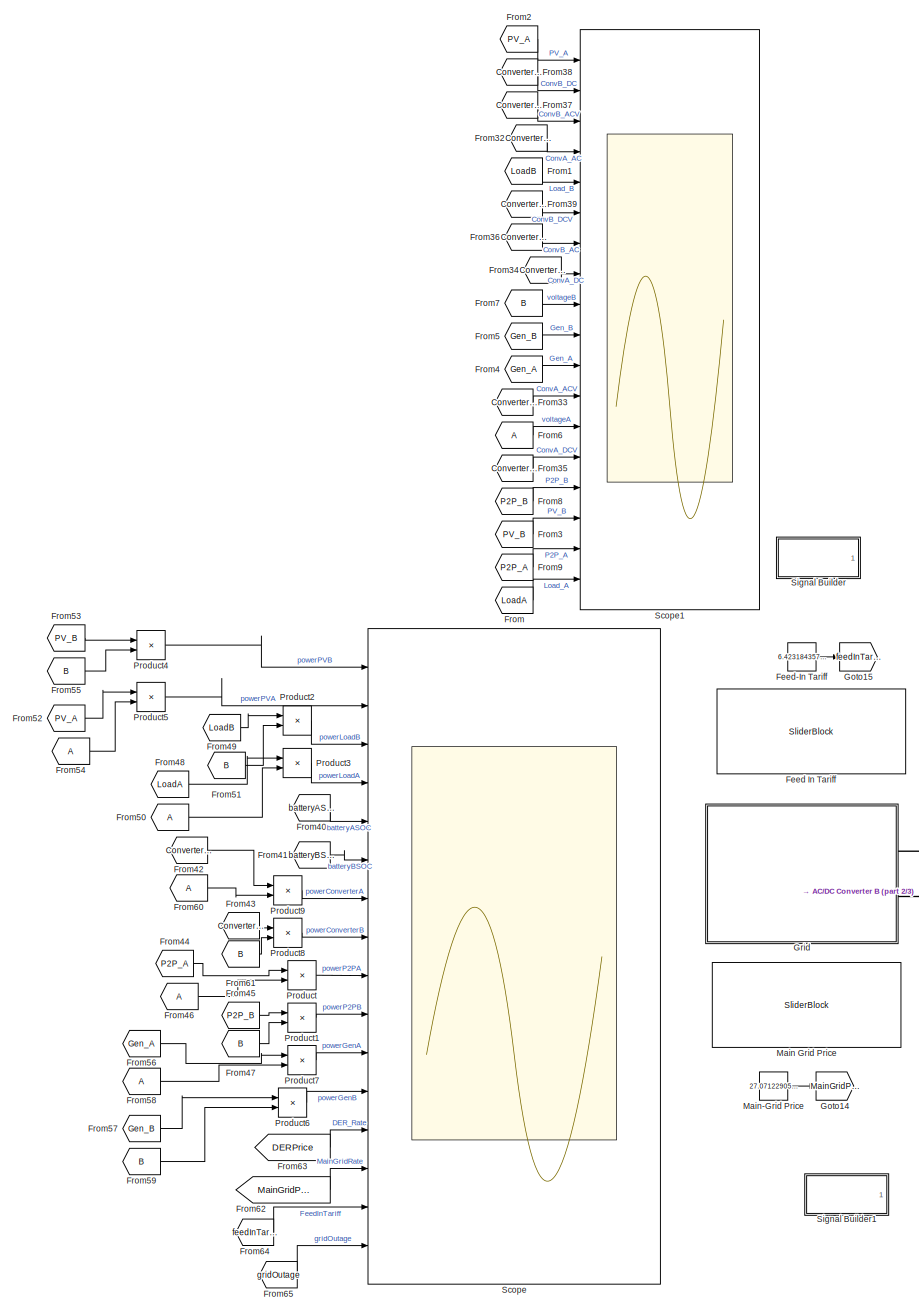
[diagram: root canvas - part 1/3, left side, full height]
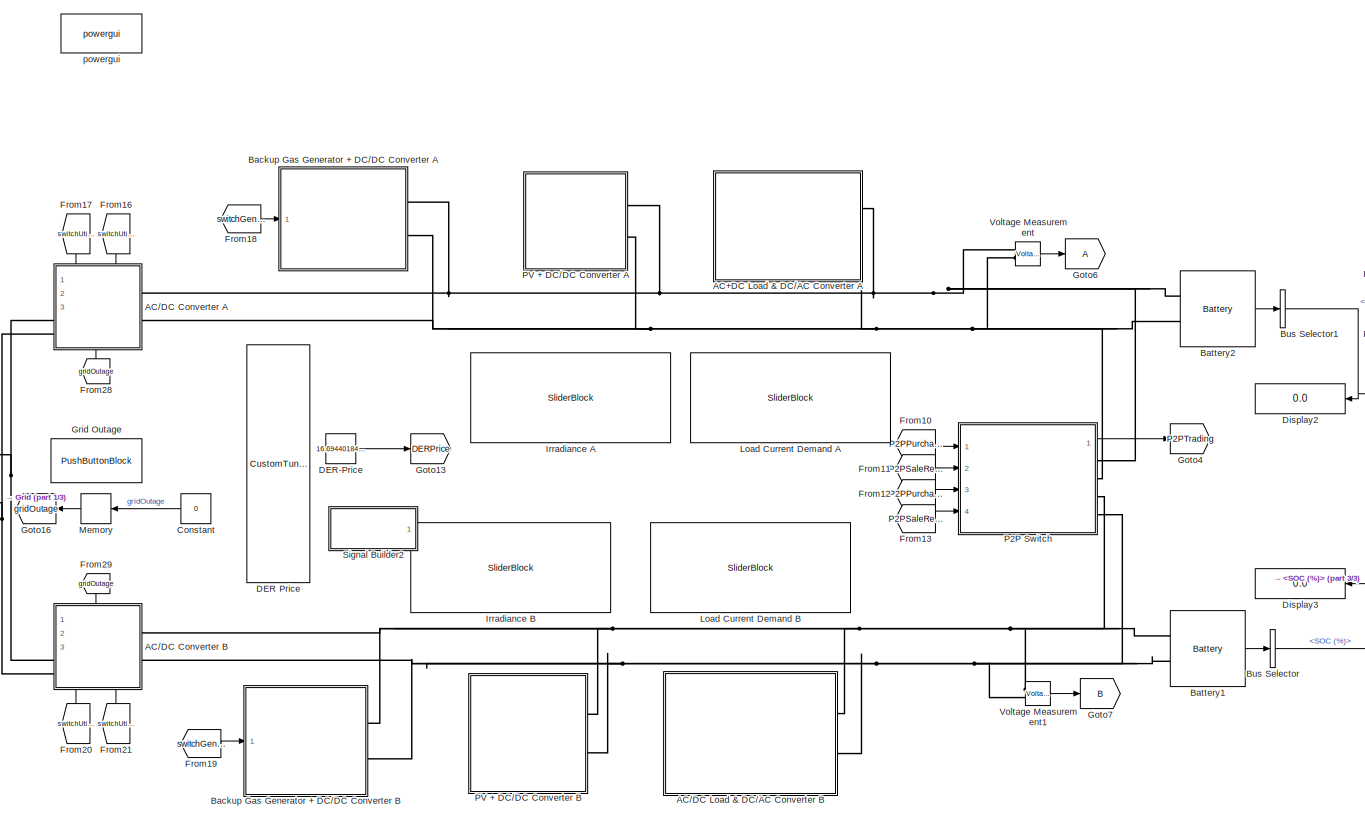
[diagram: root canvas - part 2/3, central region]
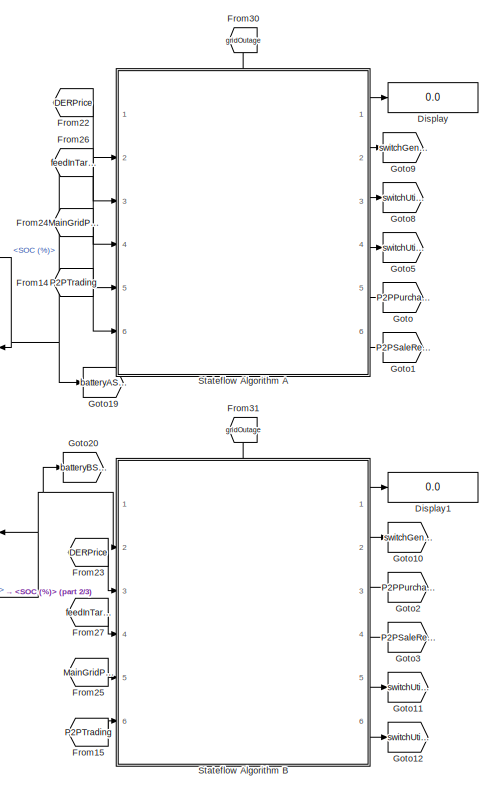
[diagram: root canvas - part 3/3, middle right region]
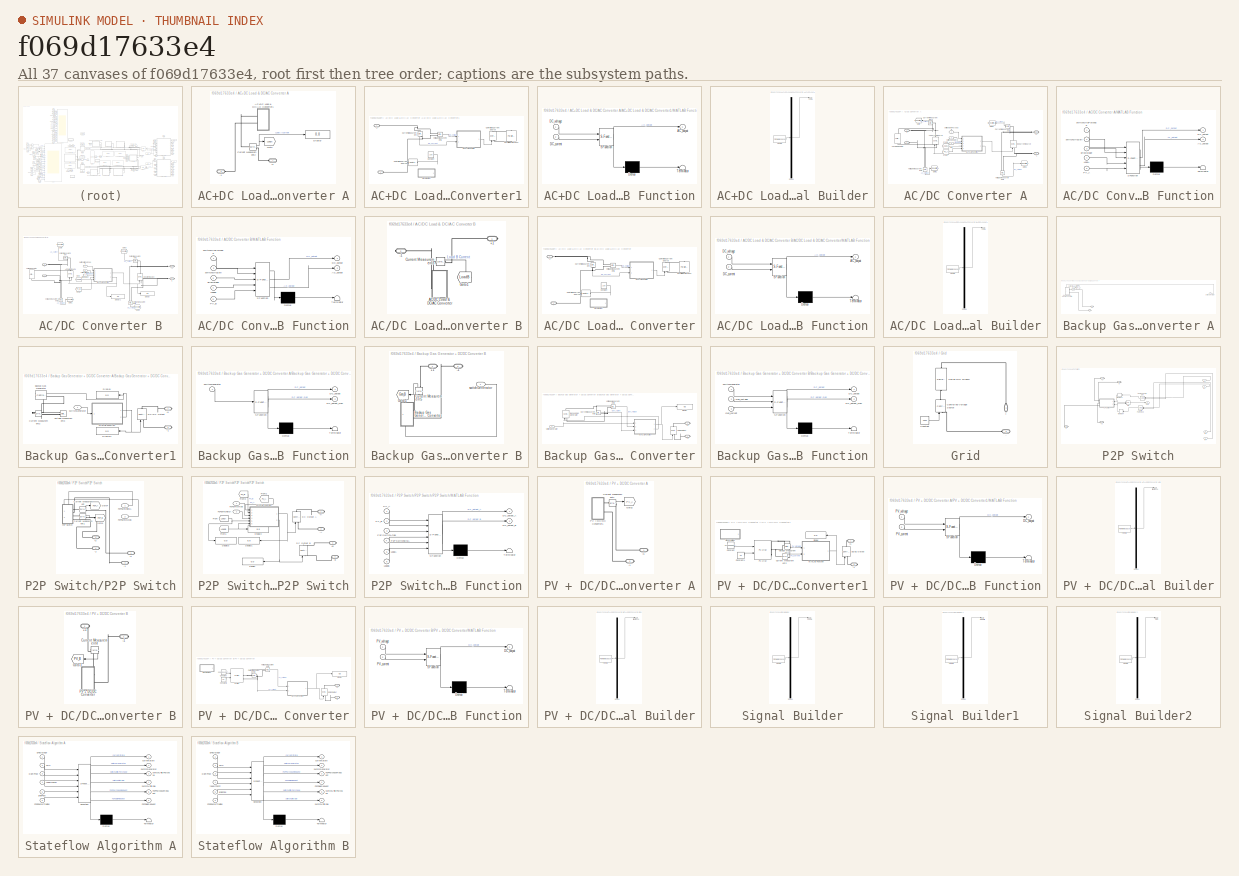
[diagram: thumbnail index - all 37 canvases of the model, root first then tree order]
MODEL slx_f069d17633e4
KIND model
CONFIG AbsTol = auto
CONFIG EnableMultiTasking = off
CONFIG FixedStep = auto
CONFIG MaxStep = auto
CONFIG MinStep = auto
CONFIG RelTol = 1e-3
CONFIG SampleTimeConstraint = Unconstrained
CONFIG SolverName = VariableStepAuto
CONFIG StartTime = 0.0
CONFIG StopTime = 86000
BLOCK [SubSystem] AC+DC Load & DC//AC Converter A
  NameLocation = top
  Ports = [0, 0, 0, 0, 0, 2]
  RequestExecContextInheritance = off
BLOCK [PMIOPort] AC+DC Load & DC//AC Converter A/+1
  Side = Left
BLOCK [PMIOPort] AC+DC Load & DC//AC Converter A/-1
  Port = 2
  Side = Left
BLOCK [SubSystem] AC+DC Load & DC//AC Converter A/AC+DC Load & DC//AC Converter1
  Ports = [0, 0, 0, 0, 0, 2]
  RequestExecContextInheritance = off
BLOCK [PMIOPort] AC+DC Load & DC//AC Converter A/AC+DC Load & DC//AC Converter1/+
  NameLocation = top
  Side = Left
BLOCK [PMIOPort] AC+DC Load & DC//AC Converter A/AC+DC Load & DC//AC Converter1/-
  Port = 2
  Side = Left
BLOCK [Constant] AC+DC Load & DC//AC Converter A/AC+DC Load & DC//AC Converter1/Constant
  Value = 100
BLOCK [Reference] AC+DC Load & DC//AC Converter A/AC+DC Load & DC//AC Converter1/Controlled Current Source  REF=spsControlledCurrentSourceLib/Controlled Current Source
  Ports = [1, 0, 0, 0, 0, 1, 1]
  SourceBlock = spsControlledCurrentSourceLib/Controlled Current Source
  SourceProductBaseCode = PS
  SourceType = Controlled Current Source
BLOCK [Reference] AC+DC Load & DC//AC Converter A/AC+DC Load & DC//AC Converter1/Controlled Current Source1  REF=spsControlledCurrentSourceLib/Controlled Current Source
  NameLocation = right
  Ports = [1, 0, 0, 0, 0, 1, 1]
  SourceBlock = spsControlledCurrentSourceLib/Controlled Current Source
  SourceProductBaseCode = PS
  SourceType = Controlled Current Source
BLOCK [Reference] AC+DC Load & DC//AC Converter A/AC+DC Load & DC//AC Converter1/Current Measurement  REF=spsCurrentMeasurementLib/Current Measurement
  NameLocation = left
  Ports = [0, 1, 0, 0, 0, 1, 1]
  SourceBlock = spsCurrentMeasurementLib/Current Measurement
  SourceProductBaseCode = PS
  SourceType = Current Measurement
  UserDataPersistent = on
BLOCK [SubSystem] AC+DC Load & DC//AC Converter A/AC+DC Load & DC//AC Converter1/MATLAB Function
  ErrorFcn = Stateflow.Translate.translate
  PermitHierarchicalResolution = ExplicitOnly
  Ports = [2, 1]
  RequestExecContextInheritance = off
  SFBlockType = MATLAB Function
  TreatAsAtomicUnit = on
BLOCK [Demux] AC+DC Load & DC//AC Converter A/AC+DC Load & DC//AC Converter1/MATLAB Function/ Demux 
  Outputs = 1
  Ports = [1, 1]
BLOCK [S-Function] AC+DC Load & DC//AC Converter A/AC+DC Load & DC//AC Converter1/MATLAB Function/ SFunction 
  EnableBusSupport = on
  FunctionName = sf_sfun
  PortCounts = [2 2]
  Ports = [2, 2]
  SFcnIsStateOwnerBlock = off
  SFunctionDeploymentMode = off
  Tag = Stateflow S-Function 11
BLOCK [Terminator] AC+DC Load & DC//AC Converter A/AC+DC Load & DC//AC Converter1/MATLAB Function/ Terminator 
BLOCK [Outport] AC+DC Load & DC//AC Converter A/AC+DC Load & DC//AC Converter1/MATLAB Function/AC_output
BLOCK [Inport] AC+DC Load & DC//AC Converter A/AC+DC Load & DC//AC Converter1/MATLAB Function/DC_current
  Port = 2
BLOCK [Inport] AC+DC Load & DC//AC Converter A/AC+DC Load & DC//AC Converter1/MATLAB Function/DC_voltage
BLOCK [Reference] AC+DC Load & DC//AC Converter A/AC+DC Load & DC//AC Converter1/Parallel RLC Branch  REF=spsParallelRLCBranchLib/Parallel RLC Branch
  AttributesFormatString = \n
  NameLocation = left
  Ports = [0, 0, 0, 0, 0, 1, 1]
  SourceBlock = spsParallelRLCBranchLib/Parallel RLC Branch
  SourceProductBaseCode = PS
  SourceType = Parallel RLC Branch
BLOCK [SubSystem] AC+DC Load & DC//AC Converter A/AC+DC Load & DC//AC Converter1/Signal Builder
  ClipboardFcn = sigbuilder_block('clipboard');
  CloseFcn = sigbuilder_block('close');
  ContinueFcn = sigbuilder_block('continue');
  CopyFcn = sigbuilder_block('copy');
  DeleteFcn = sigbuilder_block('delete');
  LoadFcn = sigbuilder_block('load');
  MaskHideContents = on
  ModelCloseFcn = sigbuilder_block('modelClose');
  NameChangeFcn = sigbuilder_block('namechange');
  OpenFcn = sigbuilder_block('open',[437.6 199.2 550.4 400 ]);
  PauseFcn = sigbuilder_block('pause');
  Ports = [0, 1]
  PreSaveFcn = sigbuilder_block('preSave');
  RequestExecContextInheritance = off
  StartFcn = sigbuilder_block('start');
  StopFcn = sigbuilder_block('stop');
  Tag = STV Subsys
BLOCK [Demux] AC+DC Load & DC//AC Converter A/AC+DC Load & DC//AC Converter1/Signal Builder/Demux
  DisplayOption = none
  Outputs = 1
  Ports = [1, 1]
  Tag = STV Demux
BLOCK [FromWorkspace] AC+DC Load & DC//AC Converter A/AC+DC Load & DC//AC Converter1/Signal Builder/FromWs
  Tag = STV FromWs
  VariableName = tuvar
BLOCK [Outport] AC+DC Load & DC//AC Converter A/AC+DC Load & DC//AC Converter1/Signal Builder/Load
  Tag = STV Outport
BLOCK [Reference] AC+DC Load & DC//AC Converter A/AC+DC Load & DC//AC Converter1/Voltage Measurement1  REF=spsVoltageMeasurementLib/Voltage Measurement
  Ports = [0, 1, 0, 0, 0, 2]
  SourceBlock = spsVoltageMeasurementLib/Voltage Measurement
  SourceProductBaseCode = PS
  SourceType = Voltage Measurement
  UserDataPersistent = on
BLOCK [Reference] AC+DC Load & DC//AC Converter A/Current Measurement2  REF=spsCurrentMeasurementLib/Current Measurement
  Ports = [0, 1, 0, 0, 0, 1, 1]
  SourceBlock = spsCurrentMeasurementLib/Current Measurement
  SourceProductBaseCode = PS
  SourceType = Current Measurement
  UserDataPersistent = on
BLOCK [Display] AC+DC Load & DC//AC Converter A/Display
  Decimation = 1
  Ports = [1]
BLOCK [Goto] AC+DC Load & DC//AC Converter A/Goto
  GotoTag = LoadA
  TagVisibility = global
BLOCK [SubSystem] AC//DC Converter A
  PortSchema = {"entries":[{"content":{"sides":[{"content":{"connectorIds":["LConn1","LConn2"]},"type":"ConnectorPlacement.EquallySpacedRectSide","uuid":"d108abb1-5086-446c-b15f-f019b5d6e838"},{"content":{"connectorIds":["RConn1","RConn2"],"side":"RIGHT"},"type":"ConnectorPlacement.EquallySpacedRectSide","uuid":"21957a4b-95ce-4ceb-ba72-e824460ef8fd"},{"content":{"connectorIds":["In1","In2"],"side":"TOP"},"type":...<+423ch>
  Ports = [3, 0, 0, 0, 0, 2, 2]
  RequestExecContextInheritance = off
BLOCK [PMIOPort] AC//DC Converter A/+
  NameLocation = top
  Side = Left
BLOCK [PMIOPort] AC//DC Converter A/+1
  Port = 3
  Side = Right
BLOCK [PMIOPort] AC//DC Converter A/-
  Port = 2
  Side = Left
BLOCK [PMIOPort] AC//DC Converter A/-1
  NameLocation = top
  Port = 4
  Side = Right
BLOCK [Reference] AC//DC Converter A/AC Current Source  REF=spsControlledCurrentSourceLib/Controlled Current Source
  Ports = [1, 0, 0, 0, 0, 1, 1]
  SourceBlock = spsControlledCurrentSourceLib/Controlled Current Source
  SourceProductBaseCode = PS
  SourceType = Controlled Current Source
BLOCK [Reference] AC//DC Converter A/Current Measurement  REF=spsCurrentMeasurementLib/Current Measurement
  NameLocation = top
  Ports = [0, 1, 0, 0, 0, 1, 1]
  SourceBlock = spsCurrentMeasurementLib/Current Measurement
  SourceProductBaseCode = PS
  SourceType = Current Measurement
  UserDataPersistent = on
BLOCK [Reference] AC//DC Converter A/Current Measurement1  REF=spsCurrentMeasurementLib/Current Measurement
  NameLocation = top
  Ports = [0, 1, 0, 0, 0, 1, 1]
  SourceBlock = spsCurrentMeasurementLib/Current Measurement
  SourceProductBaseCode = PS
  SourceType = Current Measurement
  UserDataPersistent = on
BLOCK [Reference] AC//DC Converter A/DC Current Source  REF=spsControlledCurrentSourceLib/Controlled Current Source
  Ports = [1, 0, 0, 0, 0, 1, 1]
  SourceBlock = spsControlledCurrentSourceLib/Controlled Current Source
  SourceProductBaseCode = PS
  SourceType = Controlled Current Source
BLOCK [From] AC//DC Converter A/From
  GotoTag = PV_A
  TagVisibility = global
BLOCK [From] AC//DC Converter A/From1
  GotoTag = LoadA
  TagVisibility = global
BLOCK [Goto] AC//DC Converter A/Goto
  GotoTag = ConverterA_ACCurrent
  NameLocation = top
  TagVisibility = global
BLOCK [Goto] AC//DC Converter A/Goto1
  GotoTag = ConverterA_ACVoltage
  TagVisibility = global
BLOCK [Goto] AC//DC Converter A/Goto2
  GotoTag = ConverterA_DCCurrent
  NameLocation = top
  TagVisibility = global
BLOCK [Goto] AC//DC Converter A/Goto3
  GotoTag = ConverterA_DCVoltage
  TagVisibility = global
BLOCK [Inport] AC//DC Converter A/In3
  Port = 3
BLOCK [SubSystem] AC//DC Converter A/MATLAB Function
  ErrorFcn = Stateflow.Translate.translate
  PermitHierarchicalResolution = ExplicitOnly
  Ports = [5, 2]
  RequestExecContextInheritance = off
  SFBlockType = MATLAB Function
  TreatAsAtomicUnit = on
BLOCK [Demux] AC//DC Converter A/MATLAB Function/ Demux 
  Outputs = 1
  Ports = [1, 1]
BLOCK [S-Function] AC//DC Converter A/MATLAB Function/ SFunction 
  EnableBusSupport = on
  FunctionName = sf_sfun
  PortCounts = [5 3]
  Ports = [5, 3]
  SFcnIsStateOwnerBlock = off
  SFunctionDeploymentMode = off
  Tag = Stateflow S-Function 8
BLOCK [Terminator] AC//DC Converter A/MATLAB Function/ Terminator 
BLOCK [Outport] AC//DC Converter A/MATLAB Function/AC_output
  Port = 2
BLOCK [Outport] AC//DC Converter A/MATLAB Function/DC_output
BLOCK [Inport] AC//DC Converter A/MATLAB Function/LoadA
  Port = 4
BLOCK [Inport] AC//DC Converter A/MATLAB Function/PV_A
  Port = 5
BLOCK [Inport] AC//DC Converter A/MATLAB Function/gridOutage
  Port = 3
BLOCK [Inport] AC//DC Converter A/MATLAB Function/switchGridPurchase
BLOCK [Inport] AC//DC Converter A/MATLAB Function/switchGridSell
  Port = 2
BLOCK [Reference] AC//DC Converter A/Variable Resistor  REF=spsVariableResistorLib/Variable Resistor
  NameLocation = left
  Ports = [1, 0, 0, 0, 0, 1, 1]
  SourceBlock = spsVariableResistorLib/Variable Resistor
  SourceProductBaseCode = PS
  SourceType = Variable Resistor
BLOCK [Reference] AC//DC Converter A/Voltage Measurement1  REF=spsVoltageMeasurementLib/Voltage Measurement
  NameLocation = left
  Ports = [0, 1, 0, 0, 0, 2]
  SourceBlock = spsVoltageMeasurementLib/Voltage Measurement
  SourceProductBaseCode = PS
  SourceType = Voltage Measurement
  UserDataPersistent = on
BLOCK [Reference] AC//DC Converter A/Voltage Measurement2  REF=spsVoltageMeasurementLib/Voltage Measurement
  NameLocation = left
  Ports = [0, 1, 0, 0, 0, 2]
  SourceBlock = spsVoltageMeasurementLib/Voltage Measurement
  SourceProductBaseCode = PS
  SourceType = Voltage Measurement
  UserDataPersistent = on
BLOCK [Inport] AC//DC Converter A/switchGridPurchase
BLOCK [Inport] AC//DC Converter A/switchGridSell
  Port = 2
BLOCK [SubSystem] AC//DC Converter B
  PortSchema = {"entries":[{"content":{"sides":[{"content":{"connectorIds":["LConn1","LConn2"]},"type":"ConnectorPlacement.EquallySpacedRectSide","uuid":"d108abb1-5086-446c-b15f-f019b5d6e838"},{"content":{"connectorIds":["RConn1","RConn2"],"side":"RIGHT"},"type":"ConnectorPlacement.EquallySpacedRectSide","uuid":"21957a4b-95ce-4ceb-ba72-e824460ef8fd"},{"content":{"connectorIds":["In1"],"side":"TOP"},"type":"Conne...<+423ch>
  Ports = [3, 0, 0, 0, 0, 2, 2]
  RequestExecContextInheritance = off
BLOCK [PMIOPort] AC//DC Converter B/+
  NameLocation = top
  Side = Left
BLOCK [PMIOPort] AC//DC Converter B/+1
  Port = 3
  Side = Right
BLOCK [PMIOPort] AC//DC Converter B/-
  Port = 2
  Side = Left
BLOCK [PMIOPort] AC//DC Converter B/-1
  NameLocation = top
  Port = 4
  Side = Right
BLOCK [Reference] AC//DC Converter B/AC Current Source  REF=spsControlledCurrentSourceLib/Controlled Current Source
  Ports = [1, 0, 0, 0, 0, 1, 1]
  SourceBlock = spsControlledCurrentSourceLib/Controlled Current Source
  SourceProductBaseCode = PS
  SourceType = Controlled Current Source
BLOCK [Reference] AC//DC Converter B/Current Measurement  REF=spsCurrentMeasurementLib/Current Measurement
  NameLocation = top
  Ports = [0, 1, 0, 0, 0, 1, 1]
  SourceBlock = spsCurrentMeasurementLib/Current Measurement
  SourceProductBaseCode = PS
  SourceType = Current Measurement
  UserDataPersistent = on
BLOCK [Reference] AC//DC Converter B/Current Measurement1  REF=spsCurrentMeasurementLib/Current Measurement
  NameLocation = top
  Ports = [0, 1, 0, 0, 0, 1, 1]
  SourceBlock = spsCurrentMeasurementLib/Current Measurement
  SourceProductBaseCode = PS
  SourceType = Current Measurement
  UserDataPersistent = on
BLOCK [Reference] AC//DC Converter B/DC Current Source  REF=spsControlledCurrentSourceLib/Controlled Current Source
  Ports = [1, 0, 0, 0, 0, 1, 1]
  SourceBlock = spsControlledCurrentSourceLib/Controlled Current Source
  SourceProductBaseCode = PS
  SourceType = Controlled Current Source
BLOCK [Display] AC//DC Converter B/Display
  Decimation = 1
  Ports = [1]
BLOCK [Display] AC//DC Converter B/Display1
  Decimation = 1
  Ports = [1]
BLOCK [From] AC//DC Converter B/From
  GotoTag = LoadB
  TagVisibility = global
BLOCK [From] AC//DC Converter B/From1
  GotoTag = PV_B
  TagVisibility = global
BLOCK [Goto] AC//DC Converter B/Goto
  GotoTag = ConverterB_ACCurrent
  TagVisibility = global
BLOCK [Goto] AC//DC Converter B/Goto1
  GotoTag = ConverterB_ACVoltage
  TagVisibility = global
BLOCK [Goto] AC//DC Converter B/Goto2
  GotoTag = ConverterB_DCVoltage
  TagVisibility = global
BLOCK [Goto] AC//DC Converter B/Goto3
  GotoTag = ConverterB_DCCurrent
  TagVisibility = global
BLOCK [SubSystem] AC//DC Converter B/MATLAB Function
  ErrorFcn = Stateflow.Translate.translate
  PermitHierarchicalResolution = ExplicitOnly
  Ports = [5, 2]
  RequestExecContextInheritance = off
  SFBlockType = MATLAB Function
  TreatAsAtomicUnit = on
BLOCK [Demux] AC//DC Converter B/MATLAB Function/ Demux 
  Outputs = 1
  Ports = [1, 1]
BLOCK [S-Function] AC//DC Converter B/MATLAB Function/ SFunction 
  EnableBusSupport = on
  FunctionName = sf_sfun
  PortCounts = [5 3]
  Ports = [5, 3]
  SFcnIsStateOwnerBlock = off
  SFunctionDeploymentMode = off
  Tag = Stateflow S-Function 2
BLOCK [Terminator] AC//DC Converter B/MATLAB Function/ Terminator 
BLOCK [Outport] AC//DC Converter B/MATLAB Function/AC_output
  Port = 2
BLOCK [Outport] AC//DC Converter B/MATLAB Function/DC_output
BLOCK [Inport] AC//DC Converter B/MATLAB Function/LoadB
  Port = 4
BLOCK [Inport] AC//DC Converter B/MATLAB Function/PV_B
  Port = 5
BLOCK [Inport] AC//DC Converter B/MATLAB Function/gridOutage
  Port = 3
BLOCK [Inport] AC//DC Converter B/MATLAB Function/switchGridPurchase
BLOCK [Inport] AC//DC Converter B/MATLAB Function/switchGridSell
  Port = 2
BLOCK [Reference] AC//DC Converter B/Variable Resistor  REF=spsVariableResistorLib/Variable Resistor
  NameLocation = left
  Ports = [1, 0, 0, 0, 0, 1, 1]
  SourceBlock = spsVariableResistorLib/Variable Resistor
  SourceProductBaseCode = PS
  SourceType = Variable Resistor
BLOCK [Reference] AC//DC Converter B/Voltage Measurement1  REF=spsVoltageMeasurementLib/Voltage Measurement
  NameLocation = left
  Ports = [0, 1, 0, 0, 0, 2]
  SourceBlock = spsVoltageMeasurementLib/Voltage Measurement
  SourceProductBaseCode = PS
  SourceType = Voltage Measurement
  UserDataPersistent = on
BLOCK [Reference] AC//DC Converter B/Voltage Measurement2  REF=spsVoltageMeasurementLib/Voltage Measurement
  NameLocation = left
  Ports = [0, 1, 0, 0, 0, 2]
  SourceBlock = spsVoltageMeasurementLib/Voltage Measurement
  SourceProductBaseCode = PS
  SourceType = Voltage Measurement
  UserDataPersistent = on
BLOCK [Inport] AC//DC Converter B/gridOutage
BLOCK [Inport] AC//DC Converter B/switchGridPurchase
  Port = 2
BLOCK [Inport] AC//DC Converter B/switchGridSell
  Port = 3
BLOCK [SubSystem] AC//DC Load & DC//AC Converter B
  Ports = [0, 0, 0, 0, 0, 0, 2]
  RequestExecContextInheritance = off
BLOCK [PMIOPort] AC//DC Load & DC//AC Converter B/+1
  Side = Right
BLOCK [PMIOPort] AC//DC Load & DC//AC Converter B/-1
  Port = 2
  Side = Right
BLOCK [SubSystem] AC//DC Load & DC//AC Converter B/AC//DC Load & DC//AC Converter
  Ports = [0, 0, 0, 0, 0, 2]
  RequestExecContextInheritance = off
BLOCK [PMIOPort] AC//DC Load & DC//AC Converter B/AC//DC Load & DC//AC Converter/+
  NameLocation = top
  Side = Left
BLOCK [PMIOPort] AC//DC Load & DC//AC Converter B/AC//DC Load & DC//AC Converter/-
  Port = 2
  Side = Left
BLOCK [Constant] AC//DC Load & DC//AC Converter B/AC//DC Load & DC//AC Converter/Constant
  Value = 100
BLOCK [Reference] AC//DC Load & DC//AC Converter B/AC//DC Load & DC//AC Converter/Controlled Current Source  REF=spsControlledCurrentSourceLib/Controlled Current Source
  Ports = [1, 0, 0, 0, 0, 1, 1]
  SourceBlock = spsControlledCurrentSourceLib/Controlled Current Source
  SourceProductBaseCode = PS
  SourceType = Controlled Current Source
BLOCK [Reference] AC//DC Load & DC//AC Converter B/AC//DC Load & DC//AC Converter/Controlled Current Source1  REF=spsControlledCurrentSourceLib/Controlled Current Source
  NameLocation = right
  Ports = [1, 0, 0, 0, 0, 1, 1]
  SourceBlock = spsControlledCurrentSourceLib/Controlled Current Source
  SourceProductBaseCode = PS
  SourceType = Controlled Current Source
BLOCK [Reference] AC//DC Load & DC//AC Converter B/AC//DC Load & DC//AC Converter/Current Measurement  REF=spsCurrentMeasurementLib/Current Measurement
  NameLocation = left
  Ports = [0, 1, 0, 0, 0, 1, 1]
  SourceBlock = spsCurrentMeasurementLib/Current Measurement
  SourceProductBaseCode = PS
  SourceType = Current Measurement
  UserDataPersistent = on
BLOCK [SubSystem] AC//DC Load & DC//AC Converter B/AC//DC Load & DC//AC Converter/MATLAB Function
  ErrorFcn = Stateflow.Translate.translate
  PermitHierarchicalResolution = ExplicitOnly
  Ports = [2, 1]
  RequestExecContextInheritance = off
  SFBlockType = MATLAB Function
  TreatAsAtomicUnit = on
BLOCK [Demux] AC//DC Load & DC//AC Converter B/AC//DC Load & DC//AC Converter/MATLAB Function/ Demux 
  Outputs = 1
  Ports = [1, 1]
BLOCK [S-Function] AC//DC Load & DC//AC Converter B/AC//DC Load & DC//AC Converter/MATLAB Function/ SFunction 
  EnableBusSupport = on
  FunctionName = sf_sfun
  PortCounts = [2 2]
  Ports = [2, 2]
  SFcnIsStateOwnerBlock = off
  SFunctionDeploymentMode = off
  Tag = Stateflow S-Function 6
BLOCK [Terminator] AC//DC Load & DC//AC Converter B/AC//DC Load & DC//AC Converter/MATLAB Function/ Terminator 
BLOCK [Outport] AC//DC Load & DC//AC Converter B/AC//DC Load & DC//AC Converter/MATLAB Function/AC_output
BLOCK [Inport] AC//DC Load & DC//AC Converter B/AC//DC Load & DC//AC Converter/MATLAB Function/DC_current
  Port = 2
BLOCK [Inport] AC//DC Load & DC//AC Converter B/AC//DC Load & DC//AC Converter/MATLAB Function/DC_voltage
BLOCK [Reference] AC//DC Load & DC//AC Converter B/AC//DC Load & DC//AC Converter/Parallel RLC Branch  REF=spsParallelRLCBranchLib/Parallel RLC Branch
  AttributesFormatString = \n
  NameLocation = left
  Ports = [0, 0, 0, 0, 0, 1, 1]
  SourceBlock = spsParallelRLCBranchLib/Parallel RLC Branch
  SourceProductBaseCode = PS
  SourceType = Parallel RLC Branch
BLOCK [SubSystem] AC//DC Load & DC//AC Converter B/AC//DC Load & DC//AC Converter/Signal Builder
  ClipboardFcn = sigbuilder_block('clipboard');
  CloseFcn = sigbuilder_block('close');
  ContinueFcn = sigbuilder_block('continue');
  CopyFcn = sigbuilder_block('copy');
  DeleteFcn = sigbuilder_block('delete');
  LoadFcn = sigbuilder_block('load');
  MaskHideContents = on
  ModelCloseFcn = sigbuilder_block('modelClose');
  NameChangeFcn = sigbuilder_block('namechange');
  OpenFcn = sigbuilder_block('open',[437.4 84 550.8 400.2 ]);
  PauseFcn = sigbuilder_block('pause');
  Ports = [0, 1]
  PreSaveFcn = sigbuilder_block('preSave');
  RequestExecContextInheritance = off
  StartFcn = sigbuilder_block('start');
  StopFcn = sigbuilder_block('stop');
  Tag = STV Subsys
BLOCK [Demux] AC//DC Load & DC//AC Converter B/AC//DC Load & DC//AC Converter/Signal Builder/Demux
  DisplayOption = none
  Outputs = 1
  Ports = [1, 1]
  Tag = STV Demux
BLOCK [FromWorkspace] AC//DC Load & DC//AC Converter B/AC//DC Load & DC//AC Converter/Signal Builder/FromWs
  Tag = STV FromWs
  VariableName = tuvar
BLOCK [Outport] AC//DC Load & DC//AC Converter B/AC//DC Load & DC//AC Converter/Signal Builder/Load
  Tag = STV Outport
BLOCK [Reference] AC//DC Load & DC//AC Converter B/AC//DC Load & DC//AC Converter/Voltage Measurement1  REF=spsVoltageMeasurementLib/Voltage Measurement
  Ports = [0, 1, 0, 0, 0, 2]
  SourceBlock = spsVoltageMeasurementLib/Voltage Measurement
  SourceProductBaseCode = PS
  SourceType = Voltage Measurement
  UserDataPersistent = on
BLOCK [Reference] AC//DC Load & DC//AC Converter B/Current Measurement3  REF=spsCurrentMeasurementLib/Current Measurement
  Ports = [0, 1, 0, 0, 0, 1, 1]
  SourceBlock = spsCurrentMeasurementLib/Current Measurement
  SourceProductBaseCode = PS
  SourceType = Current Measurement
  UserDataPersistent = on
BLOCK [Goto] AC//DC Load & DC//AC Converter B/Goto1
  GotoTag = LoadB
  NameLocation = top
  TagVisibility = global
BLOCK [SubSystem] Backup Gas Generator + DC//DC Converter A
  Ports = [1, 0, 0, 0, 0, 0, 2]
  RequestExecContextInheritance = off
BLOCK [PMIOPort] Backup Gas Generator + DC//DC Converter A/+1
  Side = Right
BLOCK [PMIOPort] Backup Gas Generator + DC//DC Converter A/-1
  Port = 2
  Side = Right
BLOCK [SubSystem] Backup Gas Generator + DC//DC Converter A/Backup Gas Generator + DC//DC Converter1
  PortSchema = {"entries":[{"content":{"sides":[{"content":{"connectorIds":[]},"type":"ConnectorPlacement.EquallySpacedRectSide","uuid":"2b2976e8-5e35-4ebb-b89a-c6bd5733880a"},{"content":{"connectorIds":["RConn1","RConn2"],"side":"RIGHT"},"type":"ConnectorPlacement.EquallySpacedRectSide","uuid":"3f5067af-896c-4e1f-b6f7-733e5cdc76c1"},{"content":{"connectorIds":["In1"],"side":"TOP"},"type":"ConnectorPlacement.Equ...<+395ch>
  Ports = [1, 0, 0, 0, 0, 0, 2]
  RequestExecContextInheritance = off
BLOCK [PMIOPort] Backup Gas Generator + DC//DC Converter A/Backup Gas Generator + DC//DC Converter1/+1
  Side = Right
BLOCK [PMIOPort] Backup Gas Generator + DC//DC Converter A/Backup Gas Generator + DC//DC Converter1/-1
  NameLocation = top
  Port = 2
  Side = Right
BLOCK [Reference] Backup Gas Generator + DC//DC Converter A/Backup Gas Generator + DC//DC Converter1/Backup Gas Generator  REF=spsControlledCurrentSourceLib/Controlled Current Source
  NameLocation = right
  Ports = [1, 0, 0, 0, 0, 1, 1]
  SourceBlock = spsControlledCurrentSourceLib/Controlled Current Source
  SourceProductBaseCode = PS
  SourceType = Controlled Current Source
BLOCK [Reference] Backup Gas Generator + DC//DC Converter A/Backup Gas Generator + DC//DC Converter1/Current Measurement2  REF=spsCurrentMeasurementLib/Current Measurement
  Ports = [0, 1, 0, 0, 0, 1, 1]
  SourceBlock = spsCurrentMeasurementLib/Current Measurement
  SourceProductBaseCode = PS
  SourceType = Current Measurement
  UserDataPersistent = on
BLOCK [Reference] Backup Gas Generator + DC//DC Converter A/Backup Gas Generator + DC//DC Converter1/DC//DC Output  REF=spsControlledCurrentSourceLib/Controlled Current Source
  Ports = [1, 0, 0, 0, 0, 1, 1]
  SourceBlock = spsControlledCurrentSourceLib/Controlled Current Source
  SourceProductBaseCode = PS
  SourceType = Controlled Current Source
BLOCK [Display] Backup Gas Generator + DC//DC Converter A/Backup Gas Generator + DC//DC Converter1/Display
  Decimation = 1
  NameLocation = top
  Ports = [1]
BLOCK [Display] Backup Gas Generator + DC//DC Converter A/Backup Gas Generator + DC//DC Converter1/Display1
  Decimation = 1
  NameLocation = top
  Ports = [1]
BLOCK [SubSystem] Backup Gas Generator + DC//DC Converter A/Backup Gas Generator + DC//DC Converter1/MATLAB Function
  ErrorFcn = Stateflow.Translate.translate
  PermitHierarchicalResolution = ExplicitOnly
  Ports = [1, 2]
  RequestExecContextInheritance = off
  SFBlockType = MATLAB Function
  TreatAsAtomicUnit = on
BLOCK [Demux] Backup Gas Generator + DC//DC Converter A/Backup Gas Generator + DC//DC Converter1/MATLAB Function/ Demux 
  Outputs = 1
  Ports = [1, 1]
BLOCK [S-Function] Backup Gas Generator + DC//DC Converter A/Backup Gas Generator + DC//DC Converter1/MATLAB Function/ SFunction 
  EnableBusSupport = on
  FunctionName = sf_sfun
  PortCounts = [1 3]
  Ports = [1, 3]
  SFcnIsStateOwnerBlock = off
  SFunctionDeploymentMode = off
  Tag = Stateflow S-Function 9
BLOCK [Terminator] Backup Gas Generator + DC//DC Converter A/Backup Gas Generator + DC//DC Converter1/MATLAB Function/ Terminator 
BLOCK [Outport] Backup Gas Generator + DC//DC Converter A/Backup Gas Generator + DC//DC Converter1/MATLAB Function/DC_output
BLOCK [Outport] Backup Gas Generator + DC//DC Converter A/Backup Gas Generator + DC//DC Converter1/MATLAB Function/DC_output_Gen
  Port = 2
BLOCK [Inport] Backup Gas Generator + DC//DC Converter A/Backup Gas Generator + DC//DC Converter1/MATLAB Function/switchGenerator
BLOCK [Reference] Backup Gas Generator + DC//DC Converter A/Backup Gas Generator + DC//DC Converter1/Voltage Measurement3  REF=spsVoltageMeasurementLib/Voltage Measurement
  Ports = [0, 1, 0, 0, 0, 2]
  SourceBlock = spsVoltageMeasurementLib/Voltage Measurement
  SourceProductBaseCode = PS
  SourceType = Voltage Measurement
  UserDataPersistent = on
BLOCK [Inport] Backup Gas Generator + DC//DC Converter A/Backup Gas Generator + DC//DC Converter1/switchGenerator
BLOCK [Reference] Backup Gas Generator + DC//DC Converter A/Current Measurement  REF=spsCurrentMeasurementLib/Current Measurement
  Ports = [0, 1, 0, 0, 0, 1, 1]
  SourceBlock = spsCurrentMeasurementLib/Current Measurement
  SourceProductBaseCode = PS
  SourceType = Current Measurement
  UserDataPersistent = on
BLOCK [Goto] Backup Gas Generator + DC//DC Converter A/Goto4
  GotoTag = Gen_A
  TagVisibility = global
BLOCK [Inport] Backup Gas Generator + DC//DC Converter A/switchGenerator
BLOCK [SubSystem] Backup Gas Generator + DC//DC Converter B
  Ports = [1, 0, 0, 0, 0, 0, 2]
  RequestExecContextInheritance = off
BLOCK [PMIOPort] Backup Gas Generator + DC//DC Converter B/+1
  Side = Right
BLOCK [PMIOPort] Backup Gas Generator + DC//DC Converter B/-1
  Port = 2
  Side = Right
BLOCK [SubSystem] Backup Gas Generator + DC//DC Converter B/Backup Gas Generator + DC//DC Converter
  PortSchema = {"entries":[{"content":{"sides":[{"content":{"connectorIds":[]},"type":"ConnectorPlacement.EquallySpacedRectSide","uuid":"2b2976e8-5e35-4ebb-b89a-c6bd5733880a"},{"content":{"connectorIds":["RConn1","RConn2"],"side":"RIGHT"},"type":"ConnectorPlacement.EquallySpacedRectSide","uuid":"3f5067af-896c-4e1f-b6f7-733e5cdc76c1"},{"content":{"connectorIds":[],"side":"TOP"},"type":"ConnectorPlacement.EquallyS...<+395ch>
  Ports = [1, 0, 0, 0, 0, 0, 2]
  RequestExecContextInheritance = off
BLOCK [PMIOPort] Backup Gas Generator + DC//DC Converter B/Backup Gas Generator + DC//DC Converter/+1
  Side = Right
BLOCK [PMIOPort] Backup Gas Generator + DC//DC Converter B/Backup Gas Generator + DC//DC Converter/-1
  NameLocation = top
  Port = 2
  Side = Right
BLOCK [Reference] Backup Gas Generator + DC//DC Converter B/Backup Gas Generator + DC//DC Converter/Backup Gas Generator  REF=spsControlledCurrentSourceLib/Controlled Current Source
  Ports = [1, 0, 0, 0, 0, 1, 1]
  SourceBlock = spsControlledCurrentSourceLib/Controlled Current Source
  SourceProductBaseCode = PS
  SourceType = Controlled Current Source
BLOCK [Reference] Backup Gas Generator + DC//DC Converter B/Backup Gas Generator + DC//DC Converter/Current Measurement2  REF=spsCurrentMeasurementLib/Current Measurement
  Ports = [0, 1, 0, 0, 0, 1, 1]
  SourceBlock = spsCurrentMeasurementLib/Current Measurement
  SourceProductBaseCode = PS
  SourceType = Current Measurement
  UserDataPersistent = on
BLOCK [Reference] Backup Gas Generator + DC//DC Converter B/Backup Gas Generator + DC//DC Converter/DC//DC Output  REF=spsControlledCurrentSourceLib/Controlled Current Source
  Ports = [1, 0, 0, 0, 0, 1, 1]
  SourceBlock = spsControlledCurrentSourceLib/Controlled Current Source
  SourceProductBaseCode = PS
  SourceType = Controlled Current Source
BLOCK [Display] Backup Gas Generator + DC//DC Converter B/Backup Gas Generator + DC//DC Converter/Display
  Decimation = 1
  Ports = [1]
BLOCK [SubSystem] Backup Gas Generator + DC//DC Converter B/Backup Gas Generator + DC//DC Converter/MATLAB Function
  ErrorFcn = Stateflow.Translate.translate
  PermitHierarchicalResolution = ExplicitOnly
  Ports = [3, 2]
  RequestExecContextInheritance = off
  SFBlockType = MATLAB Function
  TreatAsAtomicUnit = on
BLOCK [Demux] Backup Gas Generator + DC//DC Converter B/Backup Gas Generator + DC//DC Converter/MATLAB Function/ Demux 
  Outputs = 1
  Ports = [1, 1]
BLOCK [S-Function] Backup Gas Generator + DC//DC Converter B/Backup Gas Generator + DC//DC Converter/MATLAB Function/ SFunction 
  EnableBusSupport = on
  FunctionName = sf_sfun
  PortCounts = [3 3]
  Ports = [3, 3]
  SFcnIsStateOwnerBlock = off
  SFunctionDeploymentMode = off
  Tag = Stateflow S-Function 5
BLOCK [Terminator] Backup Gas Generator + DC//DC Converter B/Backup Gas Generator + DC//DC Converter/MATLAB Function/ Terminator 
BLOCK [Outport] Backup Gas Generator + DC//DC Converter B/Backup Gas Generator + DC//DC Converter/MATLAB Function/DC_output
BLOCK [Outport] Backup Gas Generator + DC//DC Converter B/Backup Gas Generator + DC//DC Converter/MATLAB Function/DC_output_Gen
  Port = 2
BLOCK [Inport] Backup Gas Generator + DC//DC Converter B/Backup Gas Generator + DC//DC Converter/MATLAB Function/Gen_current
  Port = 3
BLOCK [Inport] Backup Gas Generator + DC//DC Converter B/Backup Gas Generator + DC//DC Converter/MATLAB Function/Gen_voltage
  Port = 2
BLOCK [Inport] Backup Gas Generator + DC//DC Converter B/Backup Gas Generator + DC//DC Converter/MATLAB Function/switchGenerator
BLOCK [Reference] Backup Gas Generator + DC//DC Converter B/Backup Gas Generator + DC//DC Converter/Voltage Measurement3  REF=spsVoltageMeasurementLib/Voltage Measurement
  Ports = [0, 1, 0, 0, 0, 2]
  SourceBlock = spsVoltageMeasurementLib/Voltage Measurement
  SourceProductBaseCode = PS
  SourceType = Voltage Measurement
  UserDataPersistent = on
BLOCK [Inport] Backup Gas Generator + DC//DC Converter B/Backup Gas Generator + DC//DC Converter/switchGenerator
BLOCK [Reference] Backup Gas Generator + DC//DC Converter B/Current Measurement5  REF=spsCurrentMeasurementLib/Current Measurement
  NameLocation = right
  Ports = [0, 1, 0, 0, 0, 1, 1]
  SourceBlock = spsCurrentMeasurementLib/Current Measurement
  SourceProductBaseCode = PS
  SourceType = Current Measurement
  UserDataPersistent = on
BLOCK [Goto] Backup Gas Generator + DC//DC Converter B/Goto5
  GotoTag = Gen_B
  NameLocation = top
  TagVisibility = global
BLOCK [Inport] Backup Gas Generator + DC//DC Converter B/switchGenerator
BLOCK [Reference] Battery1  REF=spsBatteryLib/Battery
  NameLocation = top
  Ports = [0, 1, 0, 0, 0, 2]
  SourceBlock = spsBatteryLib/Battery
  SourceProductBaseCode = PS
  SourceType = Battery
BLOCK [Reference] Battery2  REF=spsBatteryLib/Battery
  NameLocation = top
  Ports = [0, 1, 0, 0, 0, 2]
  SourceBlock = spsBatteryLib/Battery
  SourceProductBaseCode = PS
  SourceType = Battery
BLOCK [BusSelector] Bus Selector
  OutputSignals = SOC (%)
  Ports = [1, 1]
BLOCK [BusSelector] Bus Selector1
  OutputSignals = SOC (%)
  Ports = [1, 1]
BLOCK [Constant] Constant
  NameLocation = top
  Value = 0
BLOCK [CustomTuningWebBlock] DER Price
  Configuration = {"type":"LinearGauge","settings":{"BindingType":"param","aspectRatio":3.7777777777777777,"backgroundColor":[0,0,0,"1"],"backgroundOffset":0,"backgroundOpacity":1,"fixedAspectRatio":"on","foregroundColor":[252,252,196],"orientation":"vertical","showBackgroundColor":false,"value":0},"components":[{"name":"LinearScaleComponent","settings":{"bounds":{"max":100,"min":1,"tickInterval":"auto"},"internalT...<+5452ch>
  LabelPosition = Hide
  ShowInitialText = on
BLOCK [Constant] DER-Price
  Value = 16.6944018404908
BLOCK [Display] Display
  Decimation = 1
  Ports = [1]
BLOCK [Display] Display1
  Decimation = 1
  Ports = [1]
BLOCK [Display] Display2
  Decimation = 1
  NameLocation = top
  Ports = [1]
BLOCK [Display] Display3
  Decimation = 1
  NameLocation = top
  Ports = [1]
BLOCK [SliderBlock] Feed In Tariff
  ScaleMin = 1
BLOCK [Constant] Feed-In Tariff
  Value = 6.423184357541899
BLOCK [From] From
  GotoTag = LoadA
  TagVisibility = global
BLOCK [From] From1
  GotoTag = LoadB
  TagVisibility = global
BLOCK [From] From10
  GotoTag = P2PPurchaseRequestA
BLOCK [From] From11
  GotoTag = P2PSaleRequestA
BLOCK [From] From12
  GotoTag = P2PPurchaseRequestB
BLOCK [From] From13
  GotoTag = P2PSaleRequestB
BLOCK [From] From14
  GotoTag = P2PTrading
BLOCK [From] From15
  GotoTag = P2PTrading
BLOCK [From] From16
  GotoTag = switchUtilitySellA
  NameLocation = left
BLOCK [From] From17
  GotoTag = switchUtilityPurchaseA
  NameLocation = left
BLOCK [From] From18
  GotoTag = switchGeneratorA
BLOCK [From] From19
  GotoTag = switchGeneratorB
BLOCK [From] From2
  GotoTag = PV_A
  TagVisibility = global
BLOCK [From] From20
  GotoTag = switchUtilityPurchaseB
  NameLocation = right
BLOCK [From] From21
  GotoTag = switchUtilitySellB
  NameLocation = right
BLOCK [From] From22
  GotoTag = DERPrice
BLOCK [From] From23
  GotoTag = DERPrice
BLOCK [From] From24
  GotoTag = MainGridPrice
BLOCK [From] From25
  GotoTag = MainGridPrice
BLOCK [From] From26
  GotoTag = feedInTariff
BLOCK [From] From27
  GotoTag = feedInTariff
BLOCK [From] From28
  GotoTag = gridOutage
  NameLocation = right
BLOCK [From] From29
  GotoTag = gridOutage
  NameLocation = left
BLOCK [From] From3
  GotoTag = PV_B
  TagVisibility = global
BLOCK [From] From30
  GotoTag = gridOutage
  NameLocation = left
BLOCK [From] From31
  GotoTag = gridOutage
  NameLocation = left
BLOCK [From] From32
  GotoTag = ConverterA_ACCurrent
  TagVisibility = global
BLOCK [From] From33
  GotoTag = ConverterA_ACVoltage
  TagVisibility = global
BLOCK [From] From34
  GotoTag = ConverterA_DCCurrent
  TagVisibility = global
BLOCK [From] From35
  GotoTag = ConverterA_DCVoltage
  TagVisibility = global
BLOCK [From] From36
  GotoTag = ConverterB_ACCurrent
  TagVisibility = global
BLOCK [From] From37
  GotoTag = ConverterB_ACVoltage
  TagVisibility = global
BLOCK [From] From38
  GotoTag = ConverterB_DCCurrent
  TagVisibility = global
BLOCK [From] From39
  GotoTag = ConverterB_DCVoltage
  TagVisibility = global
BLOCK [From] From4
  GotoTag = Gen_A
  TagVisibility = global
BLOCK [From] From40
  GotoTag = batteryASOC
BLOCK [From] From41
  GotoTag = batteryBSOC
BLOCK [From] From42
  GotoTag = ConverterA_DCCurrent
  NameLocation = right
  TagVisibility = global
BLOCK [From] From43
  GotoTag = ConverterB_DCCurrent
  TagVisibility = global
BLOCK [From] From44
  GotoTag = P2P_A
  TagVisibility = global
BLOCK [From] From45
  GotoTag = P2P_B
  TagVisibility = global
BLOCK [From] From46
BLOCK [From] From47
  GotoTag = B
BLOCK [From] From48
  GotoTag = LoadA
  TagVisibility = global
BLOCK [From] From49
  GotoTag = LoadB
  TagVisibility = global
BLOCK [From] From5
  GotoTag = Gen_B
  TagVisibility = global
BLOCK [From] From50
BLOCK [From] From51
  GotoTag = B
BLOCK [From] From52
  GotoTag = PV_A
  TagVisibility = global
BLOCK [From] From53
  GotoTag = PV_B
  TagVisibility = global
BLOCK [From] From54
BLOCK [From] From55
  GotoTag = B
BLOCK [From] From56
  GotoTag = Gen_A
  TagVisibility = global
BLOCK [From] From57
  GotoTag = Gen_B
  TagVisibility = global
BLOCK [From] From58
BLOCK [From] From59
  GotoTag = B
BLOCK [From] From6
BLOCK [From] From60
BLOCK [From] From61
  GotoTag = B
BLOCK [From] From62
  GotoTag = MainGridPrice
BLOCK [From] From63
  GotoTag = DERPrice
BLOCK [From] From64
  GotoTag = feedInTariff
BLOCK [From] From65
  GotoTag = gridOutage
BLOCK [From] From7
  GotoTag = B
BLOCK [From] From8
  GotoTag = P2P_B
  TagVisibility = global
BLOCK [From] From9
  GotoTag = P2P_A
  TagVisibility = global
BLOCK [Goto] Goto
  GotoTag = P2PPurchaseRequestA
BLOCK [Goto] Goto1
  GotoTag = P2PSaleRequestA
BLOCK [Goto] Goto10
  GotoTag = switchGeneratorB
BLOCK [Goto] Goto11
  GotoTag = switchUtilityPurchaseB
BLOCK [Goto] Goto12
  GotoTag = switchUtilitySellB
BLOCK [Goto] Goto13
  GotoTag = DERPrice
BLOCK [Goto] Goto14
  GotoTag = MainGridPrice
BLOCK [Goto] Goto15
  GotoTag = feedInTariff
BLOCK [Goto] Goto16
  GotoTag = gridOutage
  NameLocation = top
BLOCK [Goto] Goto19
  GotoTag = batteryASOC
BLOCK [Goto] Goto2
  GotoTag = P2PPurchaseRequestB
BLOCK [Goto] Goto20
  GotoTag = batteryBSOC
BLOCK [Goto] Goto3
  GotoTag = P2PSaleRequestB
BLOCK [Goto] Goto4
  GotoTag = P2PTrading
BLOCK [Goto] Goto5
  GotoTag = switchUtilitySellA
BLOCK [Goto] Goto6
BLOCK [Goto] Goto7
  GotoTag = B
BLOCK [Goto] Goto8
  GotoTag = switchUtilityPurchaseA
BLOCK [Goto] Goto9
  GotoTag = switchGeneratorA
BLOCK [SubSystem] Grid
  NameLocation = top
  Ports = [0, 0, 0, 0, 0, 2]
  RequestExecContextInheritance = off
BLOCK [PushButtonBlock] Grid Outage
  ButtonType = Latch
  OffValue = 0.000000
BLOCK [PMIOPort] Grid/+
  NameLocation = right
  Side = Left
BLOCK [PMIOPort] Grid/-
  Port = 2
  Side = Left
BLOCK [Constant] Grid/Constant
  Value = 1000
BLOCK [Reference] Grid/Controlled Voltage Source  REF=spsControlledVoltageSourceLib/Controlled Voltage Source
  Ports = [1, 0, 0, 0, 0, 1, 1]
  SourceBlock = spsControlledVoltageSourceLib/Controlled Voltage Source
  SourceProductBaseCode = PS
  SourceType = Controlled Voltage Source
BLOCK [Reference] Grid/Series RLC Branch  REF=spsSeriesRLCBranchLib/Series RLC Branch
  NameLocation = left
  Ports = [0, 0, 0, 0, 0, 1, 1]
  SourceBlock = spsSeriesRLCBranchLib/Series RLC Branch
  SourceProductBaseCode = PS
  SourceType = Series RLC Branch
BLOCK [SliderBlock] Irradiance A
  ScaleMax = 1000
BLOCK [SliderBlock] Irradiance B
  ScaleMax = 1000
BLOCK [SliderBlock] Load Current Demand A
BLOCK [SliderBlock] Load Current Demand B
BLOCK [SliderBlock] Main Grid Price
  ScaleMin = 1
BLOCK [Constant] Main-Grid Price
  Value = 27.07122905027933
BLOCK [Memory] Memory
  NameLocation = top
BLOCK [SubSystem] P2P Switch
  Ports = [4, 1, 0, 0, 0, 0, 4]
  RequestExecContextInheritance = off
BLOCK [PMIOPort] P2P Switch/+1
  Side = Right
BLOCK [PMIOPort] P2P Switch/+2
  Port = 3
  Side = Right
BLOCK [PMIOPort] P2P Switch/-1
  Port = 2
  Side = Right
BLOCK [PMIOPort] P2P Switch/-2
  Port = 4
  Side = Right
BLOCK [Logic] P2P Switch/A: Purchase, B: Sell
  AllPortsSameDT = off
  IconShape = distinctive
  NameLocation = top
  OutDataTypeStr = boolean
  Ports = [2, 1]
BLOCK [Logic] P2P Switch/A: Sell, B: Purchase
  AllPortsSameDT = off
  IconShape = distinctive
  NameLocation = top
  OutDataTypeStr = boolean
  Ports = [2, 1]
BLOCK [Inport] P2P Switch/In1
BLOCK [Inport] P2P Switch/In2
  Port = 2
BLOCK [Inport] P2P Switch/In3
  Port = 3
BLOCK [Inport] P2P Switch/In4
  Port = 4
BLOCK [Memory] P2P Switch/Memory1
  NameLocation = top
BLOCK [Memory] P2P Switch/Memory4
  NameLocation = top
BLOCK [Logic] P2P Switch/OR
  AllPortsSameDT = off
  IconShape = distinctive
  Operator = OR
  OutDataTypeStr = boolean
  Ports = [2, 1]
BLOCK [Outport] P2P Switch/Out1
BLOCK [SubSystem] P2P Switch/P2P Switch
  NameLocation = top
  Ports = [2, 0, 0, 0, 0, 0, 4]
  RequestExecContextInheritance = off
BLOCK [PMIOPort] P2P Switch/P2P Switch/+1
  Side = Right
BLOCK [PMIOPort] P2P Switch/P2P Switch/+2
  Port = 3
  Side = Right
BLOCK [PMIOPort] P2P Switch/P2P Switch/-1
  Port = 2
  Side = Right
BLOCK [PMIOPort] P2P Switch/P2P Switch/-2
  Port = 4
  Side = Right
BLOCK [Reference] P2P Switch/P2P Switch/Current Measurement  REF=spsCurrentMeasurementLib/Current Measurement
  Ports = [0, 1, 0, 0, 0, 1, 1]
  SourceBlock = spsCurrentMeasurementLib/Current Measurement
  SourceProductBaseCode = PS
  SourceType = Current Measurement
  UserDataPersistent = on
BLOCK [Reference] P2P Switch/P2P Switch/Current Measurement1  REF=spsCurrentMeasurementLib/Current Measurement
  Ports = [0, 1, 0, 0, 0, 1, 1]
  SourceBlock = spsCurrentMeasurementLib/Current Measurement
  SourceProductBaseCode = PS
  SourceType = Current Measurement
  UserDataPersistent = on
BLOCK [Goto] P2P Switch/P2P Switch/Goto1
  GotoTag = P2P_B
  TagVisibility = global
BLOCK [Goto] P2P Switch/P2P Switch/Goto4
  GotoTag = P2P_A
  TagVisibility = global
BLOCK [SubSystem] P2P Switch/P2P Switch/P2P Switch
  PortSchema = {"entries":[{"content":{"sides":[{"content":{"connectorIds":[]},"type":"ConnectorPlacement.EquallySpacedRectSide","uuid":"2b2976e8-5e35-4ebb-b89a-c6bd5733880a"},{"content":{"connectorIds":["RConn1","RConn2","RConn3","RConn4"],"side":"RIGHT"},"type":"ConnectorPlacement.EquallySpacedRectSide","uuid":"3f5067af-896c-4e1f-b6f7-733e5cdc76c1"},{"content":{"connectorIds":["In1","In2"],"side":"TOP"},"type"...<+419ch>
  Ports = [2, 0, 0, 0, 0, 0, 4]
  RequestExecContextInheritance = off
BLOCK [PMIOPort] P2P Switch/P2P Switch/P2P Switch/+A
  Side = Right
BLOCK [PMIOPort] P2P Switch/P2P Switch/P2P Switch/+B
  Port = 3
  Side = Right
BLOCK [PMIOPort] P2P Switch/P2P Switch/P2P Switch/-A
  NameLocation = top
  Port = 2
  Side = Right
BLOCK [PMIOPort] P2P Switch/P2P Switch/P2P Switch/-B
  Port = 4
  Side = Right
BLOCK [Reference] P2P Switch/P2P Switch/P2P Switch/DC Output A  REF=spsControlledCurrentSourceLib/Controlled Current Source
  Ports = [1, 0, 0, 0, 0, 1, 1]
  SourceBlock = spsControlledCurrentSourceLib/Controlled Current Source
  SourceProductBaseCode = PS
  SourceType = Controlled Current Source
BLOCK [Reference] P2P Switch/P2P Switch/P2P Switch/DC Output B  REF=spsControlledCurrentSourceLib/Controlled Current Source
  Ports = [1, 0, 0, 0, 0, 1, 1]
  SourceBlock = spsControlledCurrentSourceLib/Controlled Current Source
  SourceProductBaseCode = PS
  SourceType = Controlled Current Source
BLOCK [Display] P2P Switch/P2P Switch/P2P Switch/Display
  Decimation = 1
  NameLocation = top
  Ports = [1]
BLOCK [Display] P2P Switch/P2P Switch/P2P Switch/Display1
  Decimation = 1
  NameLocation = top
  Ports = [1]
BLOCK [Display] P2P Switch/P2P Switch/P2P Switch/Display2
  Decimation = 1
  Ports = [1]
BLOCK [Display] P2P Switch/P2P Switch/P2P Switch/Display3
  Decimation = 1
  Ports = [1]
BLOCK [From] P2P Switch/P2P Switch/P2P Switch/From
  GotoTag = LoadA
  TagVisibility = global
BLOCK [From] P2P Switch/P2P Switch/P2P Switch/From1
  GotoTag = LoadB
  TagVisibility = global
BLOCK [From] P2P Switch/P2P Switch/P2P Switch/From2
  GotoTag = PV_A
  TagVisibility = global
BLOCK [From] P2P Switch/P2P Switch/P2P Switch/From3
  GotoTag = PV_B
  TagVisibility = global
BLOCK [SubSystem] P2P Switch/P2P Switch/P2P Switch/MATLAB Function
  ErrorFcn = Stateflow.Translate.translate
  PermitHierarchicalResolution = ExplicitOnly
  Ports = [6, 2]
  RequestExecContextInheritance = off
  SFBlockType = MATLAB Function
  TreatAsAtomicUnit = on
BLOCK [Demux] P2P Switch/P2P Switch/P2P Switch/MATLAB Function/ Demux 
  Outputs = 1
  Ports = [1, 1]
BLOCK [S-Function] P2P Switch/P2P Switch/P2P Switch/MATLAB Function/ SFunction 
  EnableBusSupport = on
  FunctionName = sf_sfun
  PortCounts = [6 3]
  Ports = [6, 3]
  SFcnIsStateOwnerBlock = off
  SFunctionDeploymentMode = off
  Tag = Stateflow S-Function 7
BLOCK [Terminator] P2P Switch/P2P Switch/P2P Switch/MATLAB Function/ Terminator 
BLOCK [Outport] P2P Switch/P2P Switch/P2P Switch/MATLAB Function/DC_output_A
BLOCK [Outport] P2P Switch/P2P Switch/P2P Switch/MATLAB Function/DC_output_B
  Port = 2
BLOCK [Inport] P2P Switch/P2P Switch/P2P Switch/MATLAB Function/LoadA
  Port = 5
BLOCK [Inport] P2P Switch/P2P Switch/P2P Switch/MATLAB Function/LoadB
  Port = 6
BLOCK [Inport] P2P Switch/P2P Switch/P2P Switch/MATLAB Function/P2PSwitchAtoB
  Port = 3
BLOCK [Inport] P2P Switch/P2P Switch/P2P Switch/MATLAB Function/P2PSwitchBtoA
  Port = 4
BLOCK [Inport] P2P Switch/P2P Switch/P2P Switch/MATLAB Function/PV_A
BLOCK [Inport] P2P Switch/P2P Switch/P2P Switch/MATLAB Function/PV_B
  Port = 2
BLOCK [Inport] P2P Switch/P2P Switch/P2P Switch/P2PSwitchAtoB
BLOCK [Inport] P2P Switch/P2P Switch/P2P Switch/P2PSwitchBtoA
  Port = 2
BLOCK [Inport] P2P Switch/P2P Switch/P2PSwitchAtoB
  Port = 2
BLOCK [Inport] P2P Switch/P2P Switch/P2PSwitchBtoA
BLOCK [SubSystem] PV + DC//DC Converter A
  Ports = [0, 0, 0, 0, 0, 0, 2]
  RequestExecContextInheritance = off
BLOCK [PMIOPort] PV + DC//DC Converter A/+1
  Side = Right
BLOCK [PMIOPort] PV + DC//DC Converter A/-1
  Port = 2
  Side = Right
BLOCK [Reference] PV + DC//DC Converter A/Current Measurement1  REF=spsCurrentMeasurementLib/Current Measurement
  Ports = [0, 1, 0, 0, 0, 1, 1]
  SourceBlock = spsCurrentMeasurementLib/Current Measurement
  SourceProductBaseCode = PS
  SourceType = Current Measurement
  UserDataPersistent = on
BLOCK [Goto] PV + DC//DC Converter A/Goto2
  GotoTag = PV_A
  TagVisibility = global
BLOCK [SubSystem] PV + DC//DC Converter A/PV + DC//DC Converter1
  Ports = [0, 0, 0, 0, 0, 0, 2]
  RequestExecContextInheritance = off
BLOCK [PMIOPort] PV + DC//DC Converter A/PV + DC//DC Converter1/+1
  Side = Right
BLOCK [PMIOPort] PV + DC//DC Converter A/PV + DC//DC Converter1/-1
  NameLocation = top
  Port = 2
  Side = Right
BLOCK [Constant] PV + DC//DC Converter A/PV + DC//DC Converter1/Constant
  Value = 374.2260061919504
BLOCK [Constant] PV + DC//DC Converter A/PV + DC//DC Converter1/Constant1
  Value = 25
BLOCK [Reference] PV + DC//DC Converter A/PV + DC//DC Converter1/Current Measurement2  REF=spsCurrentMeasurementLib/Current Measurement
  Ports = [0, 1, 0, 0, 0, 1, 1]
  SourceBlock = spsCurrentMeasurementLib/Current Measurement
  SourceProductBaseCode = PS
  SourceType = Current Measurement
  UserDataPersistent = on
BLOCK [Reference] PV + DC//DC Converter A/PV + DC//DC Converter1/DC//DC Output  REF=spsControlledCurrentSourceLib/Controlled Current Source
  Ports = [1, 0, 0, 0, 0, 1, 1]
  SourceBlock = spsControlledCurrentSourceLib/Controlled Current Source
  SourceProductBaseCode = PS
  SourceType = Controlled Current Source
BLOCK [Display] PV + DC//DC Converter A/PV + DC//DC Converter1/Display
  Decimation = 1
  NameLocation = top
  Ports = [1]
BLOCK [SubSystem] PV + DC//DC Converter A/PV + DC//DC Converter1/MATLAB Function
  ErrorFcn = Stateflow.Translate.translate
  PermitHierarchicalResolution = ExplicitOnly
  Ports = [2, 1]
  RequestExecContextInheritance = off
  SFBlockType = MATLAB Function
  TreatAsAtomicUnit = on
BLOCK [Demux] PV + DC//DC Converter A/PV + DC//DC Converter1/MATLAB Function/ Demux 
  Outputs = 1
  Ports = [1, 1]
BLOCK [S-Function] PV + DC//DC Converter A/PV + DC//DC Converter1/MATLAB Function/ SFunction 
  EnableBusSupport = on
  FunctionName = sf_sfun
  PortCounts = [2 2]
  Ports = [2, 2]
  SFcnIsStateOwnerBlock = off
  SFunctionDeploymentMode = off
  Tag = Stateflow S-Function 10
BLOCK [Terminator] PV + DC//DC Converter A/PV + DC//DC Converter1/MATLAB Function/ Terminator 
BLOCK [Outport] PV + DC//DC Converter A/PV + DC//DC Converter1/MATLAB Function/DC_output
BLOCK [Inport] PV + DC//DC Converter A/PV + DC//DC Converter1/MATLAB Function/PV_current
  Port = 2
BLOCK [Inport] PV + DC//DC Converter A/PV + DC//DC Converter1/MATLAB Function/PV_voltage
BLOCK [Reference] PV + DC//DC Converter A/PV + DC//DC Converter1/PV Array  REF=spsPVArrayLib/PV Array
  Ports = [2, 1, 0, 0, 0, 0, 2]
  SourceBlock = spsPVArrayLib/PV Array
  SourceProductBaseCode = PS
  SourceType = PV array
BLOCK [SubSystem] PV + DC//DC Converter A/PV + DC//DC Converter1/Signal Builder
  ClipboardFcn = sigbuilder_block('clipboard');
  CloseFcn = sigbuilder_block('close');
  ContinueFcn = sigbuilder_block('continue');
  CopyFcn = sigbuilder_block('copy');
  DeleteFcn = sigbuilder_block('delete');
  LoadFcn = sigbuilder_block('load');
  MaskHideContents = on
  ModelCloseFcn = sigbuilder_block('modelClose');
  NameChangeFcn = sigbuilder_block('namechange');
  OpenFcn = sigbuilder_block('open',[509.4 101.4 550.8 400.2 ]);
  PauseFcn = sigbuilder_block('pause');
  Ports = [0, 1]
  PreSaveFcn = sigbuilder_block('preSave');
  RequestExecContextInheritance = off
  StartFcn = sigbuilder_block('start');
  StopFcn = sigbuilder_block('stop');
  Tag = STV Subsys
BLOCK [Demux] PV + DC//DC Converter A/PV + DC//DC Converter1/Signal Builder/Demux
  DisplayOption = none
  Outputs = 1
  Ports = [1, 1]
  Tag = STV Demux
BLOCK [FromWorkspace] PV + DC//DC Converter A/PV + DC//DC Converter1/Signal Builder/FromWs
  Tag = STV FromWs
  VariableName = tuvar
BLOCK [Outport] PV + DC//DC Converter A/PV + DC//DC Converter1/Signal Builder/Irradiance
  Tag = STV Outport
BLOCK [Reference] PV + DC//DC Converter A/PV + DC//DC Converter1/Voltage Measurement3  REF=spsVoltageMeasurementLib/Voltage Measurement
  Ports = [0, 1, 0, 0, 0, 2]
  SourceBlock = spsVoltageMeasurementLib/Voltage Measurement
  SourceProductBaseCode = PS
  SourceType = Voltage Measurement
  UserDataPersistent = on
BLOCK [SubSystem] PV + DC//DC Converter B
  Ports = [0, 0, 0, 0, 0, 0, 2]
  RequestExecContextInheritance = off
BLOCK [PMIOPort] PV + DC//DC Converter B/+1
  Side = Right
BLOCK [PMIOPort] PV + DC//DC Converter B/-1
  Port = 2
  Side = Right
BLOCK [Reference] PV + DC//DC Converter B/Current Measurement4  REF=spsCurrentMeasurementLib/Current Measurement
  NameLocation = top
  Ports = [0, 1, 0, 0, 0, 1, 1]
  SourceBlock = spsCurrentMeasurementLib/Current Measurement
  SourceProductBaseCode = PS
  SourceType = Current Measurement
  UserDataPersistent = on
BLOCK [Goto] PV + DC//DC Converter B/Goto3
  GotoTag = PV_B
  NameLocation = top
  TagVisibility = global
BLOCK [SubSystem] PV + DC//DC Converter B/PV + DC//DC Converter
  Ports = [0, 0, 0, 0, 0, 0, 2]
  RequestExecContextInheritance = off
BLOCK [PMIOPort] PV + DC//DC Converter B/PV + DC//DC Converter/+1
  Side = Right
BLOCK [PMIOPort] PV + DC//DC Converter B/PV + DC//DC Converter/-1
  NameLocation = top
  Port = 2
  Side = Right
BLOCK [Constant] PV + DC//DC Converter B/PV + DC//DC Converter/Constant
  Value = 355.6501547987616
BLOCK [Constant] PV + DC//DC Converter B/PV + DC//DC Converter/Constant1
  Value = 25
BLOCK [Reference] PV + DC//DC Converter B/PV + DC//DC Converter/Current Measurement2  REF=spsCurrentMeasurementLib/Current Measurement
  Ports = [0, 1, 0, 0, 0, 1, 1]
  SourceBlock = spsCurrentMeasurementLib/Current Measurement
  SourceProductBaseCode = PS
  SourceType = Current Measurement
  UserDataPersistent = on
BLOCK [Reference] PV + DC//DC Converter B/PV + DC//DC Converter/DC//DC Output  REF=spsControlledCurrentSourceLib/Controlled Current Source
  Ports = [1, 0, 0, 0, 0, 1, 1]
  SourceBlock = spsControlledCurrentSourceLib/Controlled Current Source
  SourceProductBaseCode = PS
  SourceType = Controlled Current Source
BLOCK [Display] PV + DC//DC Converter B/PV + DC//DC Converter/Display
  Decimation = 1
  Ports = [1]
BLOCK [SubSystem] PV + DC//DC Converter B/PV + DC//DC Converter/MATLAB Function
  ErrorFcn = Stateflow.Translate.translate
  PermitHierarchicalResolution = ExplicitOnly
  Ports = [2, 1]
  RequestExecContextInheritance = off
  SFBlockType = MATLAB Function
  TreatAsAtomicUnit = on
BLOCK [Demux] PV + DC//DC Converter B/PV + DC//DC Converter/MATLAB Function/ Demux 
  Outputs = 1
  Ports = [1, 1]
BLOCK [S-Function] PV + DC//DC Converter B/PV + DC//DC Converter/MATLAB Function/ SFunction 
  EnableBusSupport = on
  FunctionName = sf_sfun
  PortCounts = [2 2]
  Ports = [2, 2]
  SFcnIsStateOwnerBlock = off
  SFunctionDeploymentMode = off
  Tag = Stateflow S-Function 4
BLOCK [Terminator] PV + DC//DC Converter B/PV + DC//DC Converter/MATLAB Function/ Terminator 
BLOCK [Outport] PV + DC//DC Converter B/PV + DC//DC Converter/MATLAB Function/DC_output
BLOCK [Inport] PV + DC//DC Converter B/PV + DC//DC Converter/MATLAB Function/PV_current
  Port = 2
BLOCK [Inport] PV + DC//DC Converter B/PV + DC//DC Converter/MATLAB Function/PV_voltage
BLOCK [Reference] PV + DC//DC Converter B/PV + DC//DC Converter/PV Array  REF=spsPVArrayLib/PV Array
  Ports = [2, 1, 0, 0, 0, 0, 2]
  SourceBlock = spsPVArrayLib/PV Array
  SourceProductBaseCode = PS
  SourceType = PV array
BLOCK [SubSystem] PV + DC//DC Converter B/PV + DC//DC Converter/Signal Builder
  ClipboardFcn = sigbuilder_block('clipboard');
  CloseFcn = sigbuilder_block('close');
  ContinueFcn = sigbuilder_block('continue');
  CopyFcn = sigbuilder_block('copy');
  DeleteFcn = sigbuilder_block('delete');
  LoadFcn = sigbuilder_block('load');
  MaskHideContents = on
  ModelCloseFcn = sigbuilder_block('modelClose');
  NameChangeFcn = sigbuilder_block('namechange');
  OpenFcn = sigbuilder_block('open',[509.4 101.4 550.8 400.2 ]);
  PauseFcn = sigbuilder_block('pause');
  Ports = [0, 1]
  PreSaveFcn = sigbuilder_block('preSave');
  RequestExecContextInheritance = off
  StartFcn = sigbuilder_block('start');
  StopFcn = sigbuilder_block('stop');
  Tag = STV Subsys
BLOCK [Demux] PV + DC//DC Converter B/PV + DC//DC Converter/Signal Builder/Demux
  DisplayOption = none
  Outputs = 1
  Ports = [1, 1]
  Tag = STV Demux
BLOCK [FromWorkspace] PV + DC//DC Converter B/PV + DC//DC Converter/Signal Builder/FromWs
  Tag = STV FromWs
  VariableName = tuvar
BLOCK [Outport] PV + DC//DC Converter B/PV + DC//DC Converter/Signal Builder/Irradiance
  Tag = STV Outport
BLOCK [Reference] PV + DC//DC Converter B/PV + DC//DC Converter/Voltage Measurement3  REF=spsVoltageMeasurementLib/Voltage Measurement
  Ports = [0, 1, 0, 0, 0, 2]
  SourceBlock = spsVoltageMeasurementLib/Voltage Measurement
  SourceProductBaseCode = PS
  SourceType = Voltage Measurement
  UserDataPersistent = on
BLOCK [Product] Product
  Ports = [2, 1]
BLOCK [Product] Product1
  Ports = [2, 1]
BLOCK [Product] Product2
  Ports = [2, 1]
BLOCK [Product] Product3
  Ports = [2, 1]
BLOCK [Product] Product4
  Ports = [2, 1]
BLOCK [Product] Product5
  Ports = [2, 1]
BLOCK [Product] Product6
  Ports = [2, 1]
BLOCK [Product] Product7
  Ports = [2, 1]
BLOCK [Product] Product8
  Ports = [2, 1]
BLOCK [Product] Product9
  Ports = [2, 1]
BLOCK [Scope] Scope
  Floating = off
  NumInputPorts = 16
  Ports = [16]
  ScopeSpecificationString = Simulink.scopes.TimeScopeBlockCfg('CurrentConfiguration', extmgr.ConfigurationSet(extmgr.Configuration('Core','General UI',true),extmgr.Configuration('Core','Source UI',true),extmgr.Configuration('Sources','WiredSimulink',true,'DataLoggingVariableName','ScopeData1'),extmgr.Configuration('Visuals','Time Domain',true,'SerializedDisplays',{struct('MinYLimReal','-486.15722','MaxYLimReal','4375.41494',...<+12993ch>
BLOCK [Scope] Scope1
  Floating = off
  NumInputPorts = 18
  Ports = [18]
  ScopeSpecificationString = Simulink.scopes.TimeScopeBlockCfg('CurrentConfiguration', extmgr.ConfigurationSet(extmgr.Configuration('Core','General UI',true),extmgr.Configuration('Core','Source UI',true),extmgr.Configuration('Sources','WiredSimulink',true,'DataLoggingVariableName','ScopeData1'),extmgr.Configuration('Visuals','Time Domain',true,'SerializedDisplays',{struct('MinYLimReal','-10','MaxYLimReal','10','YLabelReal',''...<+1369ch>
BLOCK [SubSystem] Signal Builder
  ClipboardFcn = sigbuilder_block('clipboard');
  CloseFcn = sigbuilder_block('close');
  ContinueFcn = sigbuilder_block('continue');
  CopyFcn = sigbuilder_block('copy');
  DeleteFcn = sigbuilder_block('delete');
  LoadFcn = sigbuilder_block('load');
  MaskHideContents = on
  ModelCloseFcn = sigbuilder_block('modelClose');
  NameChangeFcn = sigbuilder_block('namechange');
  OpenFcn = sigbuilder_block('open',[426.6 153 550.8 400.2 ]);
  PauseFcn = sigbuilder_block('pause');
  Ports = [0, 1]
  PreSaveFcn = sigbuilder_block('preSave');
  RequestExecContextInheritance = off
  StartFcn = sigbuilder_block('start');
  StopFcn = sigbuilder_block('stop');
  Tag = STV Subsys
BLOCK [Demux] Signal Builder/Demux
  DisplayOption = none
  Outputs = 1
  Ports = [1, 1]
  Tag = STV Demux
BLOCK [Outport] Signal Builder/FeedIn
  Tag = STV Outport
BLOCK [FromWorkspace] Signal Builder/FromWs
  Tag = STV FromWs
  VariableName = tuvar
BLOCK [SubSystem] Signal Builder1
  ClipboardFcn = sigbuilder_block('clipboard');
  CloseFcn = sigbuilder_block('close');
  ContinueFcn = sigbuilder_block('continue');
  CopyFcn = sigbuilder_block('copy');
  DeleteFcn = sigbuilder_block('delete');
  LoadFcn = sigbuilder_block('load');
  MaskHideContents = on
  ModelCloseFcn = sigbuilder_block('modelClose');
  NameChangeFcn = sigbuilder_block('namechange');
  OpenFcn = sigbuilder_block('open',[426.6 153 550.8 400.2 ]);
  PauseFcn = sigbuilder_block('pause');
  Ports = [0, 1]
  PreSaveFcn = sigbuilder_block('preSave');
  RequestExecContextInheritance = off
  StartFcn = sigbuilder_block('start');
  StopFcn = sigbuilder_block('stop');
  Tag = STV Subsys
BLOCK [Demux] Signal Builder1/Demux
  DisplayOption = none
  Outputs = 1
  Ports = [1, 1]
  Tag = STV Demux
BLOCK [FromWorkspace] Signal Builder1/FromWs
  Tag = STV FromWs
  VariableName = tuvar
BLOCK [Outport] Signal Builder1/MainGrid
  Tag = STV Outport
BLOCK [SubSystem] Signal Builder2
  ClipboardFcn = sigbuilder_block('clipboard');
  CloseFcn = sigbuilder_block('close');
  ContinueFcn = sigbuilder_block('continue');
  CopyFcn = sigbuilder_block('copy');
  DeleteFcn = sigbuilder_block('delete');
  LoadFcn = sigbuilder_block('load');
  MaskHideContents = on
  ModelCloseFcn = sigbuilder_block('modelClose');
  NameChangeFcn = sigbuilder_block('namechange');
  OpenFcn = sigbuilder_block('open',[426.6 153 550.8 400.2 ]);
  PauseFcn = sigbuilder_block('pause');
  Ports = [0, 1]
  PreSaveFcn = sigbuilder_block('preSave');
  RequestExecContextInheritance = off
  StartFcn = sigbuilder_block('start');
  StopFcn = sigbuilder_block('stop');
  Tag = STV Subsys
BLOCK [Outport] Signal Builder2/DER
  Tag = STV Outport
BLOCK [Demux] Signal Builder2/Demux
  DisplayOption = none
  Outputs = 1
  Ports = [1, 1]
  Tag = STV Demux
BLOCK [FromWorkspace] Signal Builder2/FromWs
  Tag = STV FromWs
  VariableName = tuvar
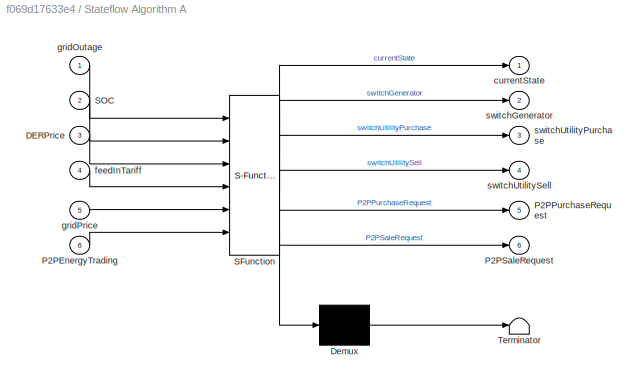
BLOCK [SubSystem] Stateflow Algorithm A
  ErrorFcn = Stateflow.Translate.translate
  PermitHierarchicalResolution = ExplicitOnly
  PortSchema = {"entries":[{"content":{"sides":[{"content":{"connectorIds":["In3","In4","In5","In6","In2"]},"type":"ConnectorPlacement.EquallySpacedRectSide","uuid":"fa40be95-7d12-4090-b6c9-44da1494b39c"},{"content":{"connectorIds":["Out1","Out2","Out3","Out4","Out5","Out6"],"side":"RIGHT"},"type":"ConnectorPlacement.EquallySpacedRectSide","uuid":"baf17cd9-68a7-482b-a40a-ea138c452546"},{"content":{"connectorIds"...<+304ch>
  Ports = [6, 6]
  RequestExecContextInheritance = off
  SFBlockType = Chart
  TreatAsAtomicUnit = on
BLOCK [Demux] Stateflow Algorithm A/ Demux 
  Outputs = 1
  Ports = [1, 1]
BLOCK [S-Function] Stateflow Algorithm A/ SFunction 
  EnableBusSupport = on
  FunctionName = sf_sfun
  PortCounts = [6 7]
  Ports = [6, 7]
  SFcnIsStateOwnerBlock = off
  SFunctionDeploymentMode = off
  Tag = Stateflow S-Function 1
BLOCK [Terminator] Stateflow Algorithm A/ Terminator 
BLOCK [Inport] Stateflow Algorithm A/DERPrice
  Port = 3
BLOCK [Inport] Stateflow Algorithm A/P2PEnergyTrading
  Port = 6
BLOCK [Outport] Stateflow Algorithm A/P2PPurchaseRequest
  Port = 5
BLOCK [Outport] Stateflow Algorithm A/P2PSaleRequest
  Port = 6
BLOCK [Inport] Stateflow Algorithm A/SOC
  Port = 2
BLOCK [Outport] Stateflow Algorithm A/currentState
BLOCK [Inport] Stateflow Algorithm A/feedInTariff
  Port = 4
BLOCK [Inport] Stateflow Algorithm A/gridOutage
BLOCK [Inport] Stateflow Algorithm A/gridPrice
  Port = 5
BLOCK [Outport] Stateflow Algorithm A/switchGenerator
  Port = 2
BLOCK [Outport] Stateflow Algorithm A/switchUtilityPurchase
  Port = 3
BLOCK [Outport] Stateflow Algorithm A/switchUtilitySell
  Port = 4
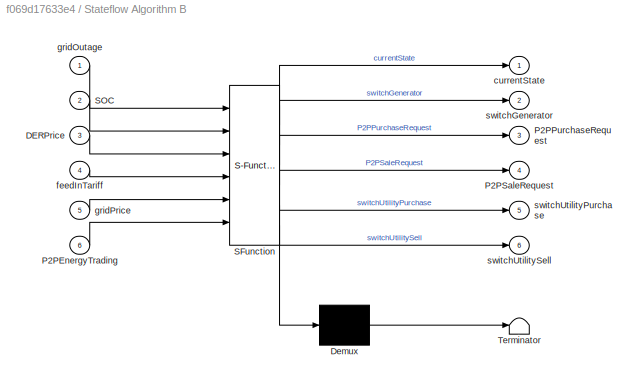
BLOCK [SubSystem] Stateflow Algorithm B
  ErrorFcn = Stateflow.Translate.translate
  PermitHierarchicalResolution = ExplicitOnly
  PortSchema = {"entries":[{"content":{"sides":[{"content":{"connectorIds":["In2","In3","In4","In5","In6"]},"type":"ConnectorPlacement.EquallySpacedRectSide","uuid":"222fe6c9-2492-4286-b2fe-ee0502c7d1b1"},{"content":{"connectorIds":["Out1","Out2","Out3","Out4","Out5","Out6"],"side":"RIGHT"},"type":"ConnectorPlacement.EquallySpacedRectSide","uuid":"fe6cecda-2536-4b6e-a5a3-681bec7accbb"},{"content":{"connectorIds"...<+304ch>
  Ports = [6, 6]
  RequestExecContextInheritance = off
  SFBlockType = Chart
  TreatAsAtomicUnit = on
BLOCK [Demux] Stateflow Algorithm B/ Demux 
  Outputs = 1
  Ports = [1, 1]
BLOCK [S-Function] Stateflow Algorithm B/ SFunction 
  EnableBusSupport = on
  FunctionName = sf_sfun
  PortCounts = [6 7]
  Ports = [6, 7]
  SFcnIsStateOwnerBlock = off
  SFunctionDeploymentMode = off
  Tag = Stateflow S-Function 3
BLOCK [Terminator] Stateflow Algorithm B/ Terminator 
BLOCK [Inport] Stateflow Algorithm B/DERPrice
  Port = 3
BLOCK [Inport] Stateflow Algorithm B/P2PEnergyTrading
  Port = 6
BLOCK [Outport] Stateflow Algorithm B/P2PPurchaseRequest
  Port = 3
BLOCK [Outport] Stateflow Algorithm B/P2PSaleRequest
  Port = 4
BLOCK [Inport] Stateflow Algorithm B/SOC
  Port = 2
BLOCK [Outport] Stateflow Algorithm B/currentState
BLOCK [Inport] Stateflow Algorithm B/feedInTariff
  Port = 4
BLOCK [Inport] Stateflow Algorithm B/gridOutage
BLOCK [Inport] Stateflow Algorithm B/gridPrice
  Port = 5
BLOCK [Outport] Stateflow Algorithm B/switchGenerator
  Port = 2
BLOCK [Outport] Stateflow Algorithm B/switchUtilityPurchase
  Port = 5
BLOCK [Outport] Stateflow Algorithm B/switchUtilitySell
  Port = 6
BLOCK [Reference] Voltage Measurement  REF=spsVoltageMeasurementLib/Voltage Measurement
  Ports = [0, 1, 0, 0, 0, 2]
  SourceBlock = spsVoltageMeasurementLib/Voltage Measurement
  SourceProductBaseCode = PS
  SourceType = Voltage Measurement
  UserDataPersistent = on
BLOCK [Reference] Voltage Measurement1  REF=spsVoltageMeasurementLib/Voltage Measurement
  Ports = [0, 1, 0, 0, 0, 2]
  SourceBlock = spsVoltageMeasurementLib/Voltage Measurement
  SourceProductBaseCode = PS
  SourceType = Voltage Measurement
  UserDataPersistent = on
BLOCK [Reference] powergui  REF=spspowerguiLib/powergui
  Ports = []
  Priority = 1
  SourceBlock = spspowerguiLib/powergui
  SourceProductBaseCode = PS
  SourceType = PSB option menu block
LINE AC+DC Load & DC//AC Converter A/AC+DC Load & DC//AC Converter1/Constant:1 -> AC+DC Load & DC//AC Converter A/AC+DC Load & DC//AC Converter1/Controlled Current Source1:1
LINE AC+DC Load & DC//AC Converter A/AC+DC Load & DC//AC Converter1/Current Measurement:1 -> AC+DC Load & DC//AC Converter A/AC+DC Load & DC//AC Converter1/MATLAB Function:2
LINE AC+DC Load & DC//AC Converter A/AC+DC Load & DC//AC Converter1/MATLAB Function:1 -> AC+DC Load & DC//AC Converter A/AC+DC Load & DC//AC Converter1/Controlled Current Source:1
LINE AC+DC Load & DC//AC Converter A/AC+DC Load & DC//AC Converter1/Voltage Measurement1:1 -> AC+DC Load & DC//AC Converter A/AC+DC Load & DC//AC Converter1/MATLAB Function:1
NET AC+DC Load & DC//AC Converter A/Current Measurement2:1 -> AC+DC Load & DC//AC Converter A/Display:1, AC+DC Load & DC//AC Converter A/Goto:1
LINE AC//DC Converter A/Current Measurement1:1 -> AC//DC Converter A/Goto2:1
LINE AC//DC Converter A/Current Measurement:1 -> AC//DC Converter A/Goto:1
LINE AC//DC Converter A/From1:1 -> AC//DC Converter A/MATLAB Function:4
LINE AC//DC Converter A/From:1 -> AC//DC Converter A/MATLAB Function:5
LINE AC//DC Converter A/In3:1 -> AC//DC Converter A/MATLAB Function:3
LINE AC//DC Converter A/MATLAB Function:1 -> AC//DC Converter A/DC Current Source:1
LINE AC//DC Converter A/MATLAB Function:2 -> AC//DC Converter A/AC Current Source:1
LINE AC//DC Converter A/Voltage Measurement1:1 -> AC//DC Converter A/Goto1:1
LINE AC//DC Converter A/Voltage Measurement2:1 -> AC//DC Converter A/Goto3:1
LINE AC//DC Converter A/switchGridPurchase:1 -> AC//DC Converter A/MATLAB Function:1
LINE AC//DC Converter A/switchGridSell:1 -> AC//DC Converter A/MATLAB Function:2
LINE AC//DC Converter B/Current Measurement1:1 -> AC//DC Converter B/Goto3:1
LINE AC//DC Converter B/Current Measurement:1 -> AC//DC Converter B/Goto:1
LINE AC//DC Converter B/From1:1 -> AC//DC Converter B/MATLAB Function:5
LINE AC//DC Converter B/From:1 -> AC//DC Converter B/MATLAB Function:4
NET AC//DC Converter B/MATLAB Function:1 -> AC//DC Converter B/DC Current Source:1, AC//DC Converter B/Display:1
NET AC//DC Converter B/MATLAB Function:2 -> AC//DC Converter B/AC Current Source:1, AC//DC Converter B/Display1:1
LINE AC//DC Converter B/Voltage Measurement1:1 -> AC//DC Converter B/Goto1:1
LINE AC//DC Converter B/Voltage Measurement2:1 -> AC//DC Converter B/Goto2:1
LINE AC//DC Converter B/gridOutage:1 -> AC//DC Converter B/MATLAB Function:3
LINE AC//DC Converter B/switchGridPurchase:1 -> AC//DC Converter B/MATLAB Function:1
LINE AC//DC Converter B/switchGridSell:1 -> AC//DC Converter B/MATLAB Function:2
LINE AC//DC Load & DC//AC Converter B/AC//DC Load & DC//AC Converter/Constant:1 -> AC//DC Load & DC//AC Converter B/AC//DC Load & DC//AC Converter/Controlled Current Source1:1
LINE AC//DC Load & DC//AC Converter B/AC//DC Load & DC//AC Converter/Current Measurement:1 -> AC//DC Load & DC//AC Converter B/AC//DC Load & DC//AC Converter/MATLAB Function:2
LINE AC//DC Load & DC//AC Converter B/AC//DC Load & DC//AC Converter/MATLAB Function:1 -> AC//DC Load & DC//AC Converter B/AC//DC Load & DC//AC Converter/Controlled Current Source:1
LINE AC//DC Load & DC//AC Converter B/AC//DC Load & DC//AC Converter/Voltage Measurement1:1 -> AC//DC Load & DC//AC Converter B/AC//DC Load & DC//AC Converter/MATLAB Function:1
LINE AC//DC Load & DC//AC Converter B/Current Measurement3:1 -> AC//DC Load & DC//AC Converter B/Goto1:1
NET Backup Gas Generator + DC//DC Converter A/Backup Gas Generator + DC//DC Converter1/MATLAB Function:1 -> Backup Gas Generator + DC//DC Converter A/Backup Gas Generator + DC//DC Converter1/DC//DC Output:1, Backup Gas Generator + DC//DC Converter A/Backup Gas Generator + DC//DC Converter1/Display1:1
NET Backup Gas Generator + DC//DC Converter A/Backup Gas Generator + DC//DC Converter1/MATLAB Function:2 -> Backup Gas Generator + DC//DC Converter A/Backup Gas Generator + DC//DC Converter1/Backup Gas Generator:1, Backup Gas Generator + DC//DC Converter A/Backup Gas Generator + DC//DC Converter1/Display:1
LINE Backup Gas Generator + DC//DC Converter A/Backup Gas Generator + DC//DC Converter1/switchGenerator:1 -> Backup Gas Generator + DC//DC Converter A/Backup Gas Generator + DC//DC Converter1/MATLAB Function:1
LINE Backup Gas Generator + DC//DC Converter A/Current Measurement:1 -> Backup Gas Generator + DC//DC Converter A/Goto4:1
LINE Backup Gas Generator + DC//DC Converter A/switchGenerator:1 -> Backup Gas Generator + DC//DC Converter A/Backup Gas Generator + DC//DC Converter1:1
LINE Backup Gas Generator + DC//DC Converter B/Backup Gas Generator + DC//DC Converter/Current Measurement2:1 -> Backup Gas Generator + DC//DC Converter B/Backup Gas Generator + DC//DC Converter/MATLAB Function:3
NET Backup Gas Generator + DC//DC Converter B/Backup Gas Generator + DC//DC Converter/MATLAB Function:1 -> Backup Gas Generator + DC//DC Converter B/Backup Gas Generator + DC//DC Converter/DC//DC Output:1, Backup Gas Generator + DC//DC Converter B/Backup Gas Generator + DC//DC Converter/Display:1
LINE Backup Gas Generator + DC//DC Converter B/Backup Gas Generator + DC//DC Converter/MATLAB Function:2 -> Backup Gas Generator + DC//DC Converter B/Backup Gas Generator + DC//DC Converter/Backup Gas Generator:1
LINE Backup Gas Generator + DC//DC Converter B/Backup Gas Generator + DC//DC Converter/Voltage Measurement3:1 -> Backup Gas Generator + DC//DC Converter B/Backup Gas Generator + DC//DC Converter/MATLAB Function:2
LINE Backup Gas Generator + DC//DC Converter B/Backup Gas Generator + DC//DC Converter/switchGenerator:1 -> Backup Gas Generator + DC//DC Converter B/Backup Gas Generator + DC//DC Converter/MATLAB Function:1
LINE Backup Gas Generator + DC//DC Converter B/Current Measurement5:1 -> Backup Gas Generator + DC//DC Converter B/Goto5:1
LINE Backup Gas Generator + DC//DC Converter B/switchGenerator:1 -> Backup Gas Generator + DC//DC Converter B/Backup Gas Generator + DC//DC Converter:1
LINE Battery1:1 -> Bus Selector:1
LINE Battery2:1 -> Bus Selector1:1
NET Bus Selector1:1 -> Display2:1, Goto19:1, Stateflow Algorithm A:2
NET Bus Selector:1 -> Display3:1, Goto20:1, Stateflow Algorithm B:2
LINE Constant:1 -> Memory:1
LINE DER-Price:1 -> Goto13:1
LINE Feed-In Tariff:1 -> Goto15:1
LINE From10:1 -> P2P Switch:1
LINE From11:1 -> P2P Switch:2
LINE From12:1 -> P2P Switch:3
LINE From13:1 -> P2P Switch:4
LINE From14:1 -> Stateflow Algorithm A:6
LINE From15:1 -> Stateflow Algorithm B:6
LINE From16:1 -> AC//DC Converter A:2
LINE From17:1 -> AC//DC Converter A:1
LINE From18:1 -> Backup Gas Generator + DC//DC Converter A:1
LINE From19:1 -> Backup Gas Generator + DC//DC Converter B:1
LINE From1:1 -> Scope1:5
LINE From20:1 -> AC//DC Converter B:2
LINE From21:1 -> AC//DC Converter B:3
LINE From22:1 -> Stateflow Algorithm A:3
LINE From23:1 -> Stateflow Algorithm B:3
LINE From24:1 -> Stateflow Algorithm A:5
LINE From25:1 -> Stateflow Algorithm B:5
LINE From26:1 -> Stateflow Algorithm A:4
LINE From27:1 -> Stateflow Algorithm B:4
LINE From28:1 -> AC//DC Converter A:3
LINE From29:1 -> AC//DC Converter B:1
LINE From2:1 -> Scope1:1
LINE From30:1 -> Stateflow Algorithm A:1
LINE From31:1 -> Stateflow Algorithm B:1
LINE From32:1 -> Scope1:4
LINE From33:1 -> Scope1:12
LINE From34:1 -> Scope1:8
LINE From35:1 -> Scope1:14
LINE From36:1 -> Scope1:7
LINE From37:1 -> Scope1:3
LINE From38:1 -> Scope1:2
LINE From39:1 -> Scope1:6
LINE From3:1 -> Scope1:16
LINE From40:1 -> Scope:5
LINE From41:1 -> Scope:6
LINE From42:1 -> Product9:1
LINE From43:1 -> Product8:1
LINE From44:1 -> Product:1
LINE From45:1 -> Product1:1
LINE From46:1 -> Product:2
LINE From47:1 -> Product1:2
LINE From48:1 -> Product3:1
LINE From49:1 -> Product2:1
LINE From4:1 -> Scope1:11
LINE From50:1 -> Product3:2
LINE From51:1 -> Product2:2
LINE From52:1 -> Product5:1
LINE From53:1 -> Product4:1
LINE From54:1 -> Product5:2
LINE From55:1 -> Product4:2
LINE From56:1 -> Product7:1
LINE From57:1 -> Product6:1
LINE From58:1 -> Product7:2
LINE From59:1 -> Product6:2
LINE From5:1 -> Scope1:10
LINE From60:1 -> Product9:2
LINE From61:1 -> Product8:2
LINE From62:1 -> Scope:14
LINE From63:1 -> Scope:13
LINE From64:1 -> Scope:15
LINE From65:1 -> Scope:16
LINE From6:1 -> Scope1:13
LINE From7:1 -> Scope1:9
LINE From8:1 -> Scope1:15
LINE From9:1 -> Scope1:17
LINE From:1 -> Scope1:18
LINE Grid/Constant:1 -> Grid/Controlled Voltage Source:1
LINE Main-Grid Price:1 -> Goto14:1
LINE Memory:1 -> Goto16:1
LINE P2P Switch/A: Purchase, B: Sell:1 -> P2P Switch/Memory1:1
LINE P2P Switch/A: Sell, B: Purchase:1 -> P2P Switch/Memory4:1
LINE P2P Switch/In1:1 -> P2P Switch/A: Purchase, B: Sell:1
LINE P2P Switch/In2:1 -> P2P Switch/A: Sell, B: Purchase:1
LINE P2P Switch/In3:1 -> P2P Switch/A: Sell, B: Purchase:2
LINE P2P Switch/In4:1 -> P2P Switch/A: Purchase, B: Sell:2
NET P2P Switch/Memory1:1 -> P2P Switch/OR:1, P2P Switch/P2P Switch:1
NET P2P Switch/Memory4:1 -> P2P Switch/OR:2, P2P Switch/P2P Switch:2
LINE P2P Switch/OR:1 -> P2P Switch/Out1:1
LINE P2P Switch/P2P Switch/Current Measurement1:1 -> P2P Switch/P2P Switch/Goto1:1
LINE P2P Switch/P2P Switch/Current Measurement:1 -> P2P Switch/P2P Switch/Goto4:1
NET P2P Switch/P2P Switch/P2P Switch/From1:1 -> P2P Switch/P2P Switch/P2P Switch/Display2:1, P2P Switch/P2P Switch/P2P Switch/MATLAB Function:6
LINE P2P Switch/P2P Switch/P2P Switch/From2:1 -> P2P Switch/P2P Switch/P2P Switch/MATLAB Function:1
LINE P2P Switch/P2P Switch/P2P Switch/From3:1 -> P2P Switch/P2P Switch/P2P Switch/MATLAB Function:2
NET P2P Switch/P2P Switch/P2P Switch/From:1 -> P2P Switch/P2P Switch/P2P Switch/Display3:1, P2P Switch/P2P Switch/P2P Switch/MATLAB Function:5
NET P2P Switch/P2P Switch/P2P Switch/MATLAB Function:1 -> P2P Switch/P2P Switch/P2P Switch/DC Output A:1, P2P Switch/P2P Switch/P2P Switch/Display1:1
NET P2P Switch/P2P Switch/P2P Switch/MATLAB Function:2 -> P2P Switch/P2P Switch/P2P Switch/DC Output B:1, P2P Switch/P2P Switch/P2P Switch/Display:1
LINE P2P Switch/P2P Switch/P2P Switch/P2PSwitchAtoB:1 -> P2P Switch/P2P Switch/P2P Switch/MATLAB Function:3
LINE P2P Switch/P2P Switch/P2P Switch/P2PSwitchBtoA:1 -> P2P Switch/P2P Switch/P2P Switch/MATLAB Function:4
LINE P2P Switch/P2P Switch/P2PSwitchAtoB:1 -> P2P Switch/P2P Switch/P2P Switch:1
LINE P2P Switch/P2P Switch/P2PSwitchBtoA:1 -> P2P Switch/P2P Switch/P2P Switch:2
LINE P2P Switch:1 -> Goto4:1
LINE PV + DC//DC Converter A/Current Measurement1:1 -> PV + DC//DC Converter A/Goto2:1
LINE PV + DC//DC Converter A/PV + DC//DC Converter1/Constant1:1 -> PV + DC//DC Converter A/PV + DC//DC Converter1/PV Array:2
LINE PV + DC//DC Converter A/PV + DC//DC Converter1/Constant:1 -> PV + DC//DC Converter A/PV + DC//DC Converter1/PV Array:1
LINE PV + DC//DC Converter A/PV + DC//DC Converter1/Current Measurement2:1 -> PV + DC//DC Converter A/PV + DC//DC Converter1/MATLAB Function:2
NET PV + DC//DC Converter A/PV + DC//DC Converter1/MATLAB Function:1 -> PV + DC//DC Converter A/PV + DC//DC Converter1/DC//DC Output:1, PV + DC//DC Converter A/PV + DC//DC Converter1/Display:1
LINE PV + DC//DC Converter A/PV + DC//DC Converter1/Voltage Measurement3:1 -> PV + DC//DC Converter A/PV + DC//DC Converter1/MATLAB Function:1
LINE PV + DC//DC Converter B/Current Measurement4:1 -> PV + DC//DC Converter B/Goto3:1
LINE PV + DC//DC Converter B/PV + DC//DC Converter/Constant1:1 -> PV + DC//DC Converter B/PV + DC//DC Converter/PV Array:2
LINE PV + DC//DC Converter B/PV + DC//DC Converter/Constant:1 -> PV + DC//DC Converter B/PV + DC//DC Converter/PV Array:1
LINE PV + DC//DC Converter B/PV + DC//DC Converter/Current Measurement2:1 -> PV + DC//DC Converter B/PV + DC//DC Converter/MATLAB Function:2
NET PV + DC//DC Converter B/PV + DC//DC Converter/MATLAB Function:1 -> PV + DC//DC Converter B/PV + DC//DC Converter/DC//DC Output:1, PV + DC//DC Converter B/PV + DC//DC Converter/Display:1
LINE PV + DC//DC Converter B/PV + DC//DC Converter/Voltage Measurement3:1 -> PV + DC//DC Converter B/PV + DC//DC Converter/MATLAB Function:1
LINE Product1:1 -> Scope:10
LINE Product2:1 -> Scope:3
LINE Product3:1 -> Scope:4
LINE Product4:1 -> Scope:1
LINE Product5:1 -> Scope:2
LINE Product6:1 -> Scope:12
LINE Product7:1 -> Scope:11
LINE Product8:1 -> Scope:8
LINE Product9:1 -> Scope:7
LINE Product:1 -> Scope:9
LINE Stateflow Algorithm A:1 -> Display:1
LINE Stateflow Algorithm A:2 -> Goto9:1
LINE Stateflow Algorithm A:3 -> Goto8:1
LINE Stateflow Algorithm A:4 -> Goto5:1
LINE Stateflow Algorithm A:5 -> Goto:1
LINE Stateflow Algorithm A:6 -> Goto1:1
LINE Stateflow Algorithm B:1 -> Display1:1
LINE Stateflow Algorithm B:2 -> Goto10:1
LINE Stateflow Algorithm B:3 -> Goto2:1
LINE Stateflow Algorithm B:4 -> Goto3:1
LINE Stateflow Algorithm B:5 -> Goto11:1
LINE Stateflow Algorithm B:6 -> Goto12:1
LINE Voltage Measurement1:1 -> Goto7:1
LINE Voltage Measurement:1 -> Goto6:1
PLINE AC+DC Load & DC//AC Converter A/+1:RConn1 -- AC+DC Load & DC//AC Converter A/Current Measurement2:RConn1
PLINE AC+DC Load & DC//AC Converter A/-1:RConn1 -- AC+DC Load & DC//AC Converter A/AC+DC Load & DC//AC Converter1:LConn2
PNET net1: AC+DC Load & DC//AC Converter A/AC+DC Load & DC//AC Converter1/+:RConn1 -- AC+DC Load & DC//AC Converter A/AC+DC Load & DC//AC Converter1/Current Measurement:LConn1 -- AC+DC Load & DC//AC Converter A/AC+DC Load & DC//AC Converter1/Voltage Measurement1:LConn1
PLINE AC+DC Load & DC//AC Converter A/AC+DC Load & DC//AC Converter1/-:RConn1 -- AC+DC Load & DC//AC Converter A/AC+DC Load & DC//AC Converter1/Controlled Current Source1:RConn1
PNET net2: AC+DC Load & DC//AC Converter A/AC+DC Load & DC//AC Converter1/Controlled Current Source1:LConn1 -- AC+DC Load & DC//AC Converter A/AC+DC Load & DC//AC Converter1/Current Measurement:RConn1 -- AC+DC Load & DC//AC Converter A/AC+DC Load & DC//AC Converter1/Voltage Measurement1:LConn2
PLINE AC+DC Load & DC//AC Converter A/AC+DC Load & DC//AC Converter1/Controlled Current Source:LConn1 -- AC+DC Load & DC//AC Converter A/AC+DC Load & DC//AC Converter1/Parallel RLC Branch:RConn1
PLINE AC+DC Load & DC//AC Converter A/AC+DC Load & DC//AC Converter1/Controlled Current Source:RConn1 -- AC+DC Load & DC//AC Converter A/AC+DC Load & DC//AC Converter1/Parallel RLC Branch:LConn1
PLINE AC+DC Load & DC//AC Converter A/AC+DC Load & DC//AC Converter1:LConn1 -- AC+DC Load & DC//AC Converter A/Current Measurement2:LConn1
PNET net3: AC+DC Load & DC//AC Converter A:LConn1 -- AC//DC Converter A:RConn1 -- Backup Gas Generator + DC//DC Converter A:RConn1 -- Battery2:LConn1 -- P2P Switch:RConn1 -- PV + DC//DC Converter A:RConn1 -- Voltage Measurement:LConn1
PNET net4: AC+DC Load & DC//AC Converter A:LConn2 -- AC//DC Converter A:RConn2 -- Backup Gas Generator + DC//DC Converter A:RConn2 -- Battery2:LConn2 -- P2P Switch:RConn2 -- PV + DC//DC Converter A:RConn2 -- Voltage Measurement:LConn2
PNET net5: AC//DC Converter A/+1:RConn1 -- AC//DC Converter A/Current Measurement1:RConn1 -- AC//DC Converter A/Voltage Measurement2:LConn1
PNET net6: AC//DC Converter A/+:RConn1 -- AC//DC Converter A/Current Measurement:RConn1 -- AC//DC Converter A/Voltage Measurement1:LConn1
PNET net7: AC//DC Converter A/-1:RConn1 -- AC//DC Converter A/DC Current Source:LConn1 -- AC//DC Converter A/Voltage Measurement2:LConn2
PNET net8: AC//DC Converter A/-:RConn1 -- AC//DC Converter A/AC Current Source:LConn1 -- AC//DC Converter A/Variable Resistor:RConn1 -- AC//DC Converter A/Voltage Measurement1:LConn2
PNET net9: AC//DC Converter A/AC Current Source:RConn1 -- AC//DC Converter A/Current Measurement:LConn1 -- AC//DC Converter A/Variable Resistor:LConn1
PLINE AC//DC Converter A/Current Measurement1:LConn1 -- AC//DC Converter A/DC Current Source:RConn1
PNET net10: AC//DC Converter A:LConn1 -- AC//DC Converter B:LConn1 -- Grid:LConn1
PNET net11: AC//DC Converter A:LConn2 -- AC//DC Converter B:LConn2 -- Grid:LConn2
PNET net12: AC//DC Converter B/+1:RConn1 -- AC//DC Converter B/Current Measurement1:RConn1 -- AC//DC Converter B/Voltage Measurement2:LConn1
PNET net13: AC//DC Converter B/+:RConn1 -- AC//DC Converter B/Current Measurement:RConn1 -- AC//DC Converter B/Voltage Measurement1:LConn1
PNET net14: AC//DC Converter B/-1:RConn1 -- AC//DC Converter B/DC Current Source:LConn1 -- AC//DC Converter B/Voltage Measurement2:LConn2
PNET net15: AC//DC Converter B/-:RConn1 -- AC//DC Converter B/AC Current Source:LConn1 -- AC//DC Converter B/Variable Resistor:RConn1 -- AC//DC Converter B/Voltage Measurement1:LConn2
PNET net16: AC//DC Converter B/AC Current Source:RConn1 -- AC//DC Converter B/Current Measurement:LConn1 -- AC//DC Converter B/Variable Resistor:LConn1
PLINE AC//DC Converter B/Current Measurement1:LConn1 -- AC//DC Converter B/DC Current Source:RConn1
PNET net17: AC//DC Converter B:RConn1 -- AC//DC Load & DC//AC Converter B:RConn1 -- Backup Gas Generator + DC//DC Converter B:RConn1 -- Battery1:LConn1 -- P2P Switch:RConn3 -- PV + DC//DC Converter B:RConn1 -- Voltage Measurement1:LConn1
PNET net18: AC//DC Converter B:RConn2 -- AC//DC Load & DC//AC Converter B:RConn2 -- Backup Gas Generator + DC//DC Converter B:RConn2 -- Battery1:LConn2 -- P2P Switch:RConn4 -- PV + DC//DC Converter B:RConn2 -- Voltage Measurement1:LConn2
PLINE AC//DC Load & DC//AC Converter B/+1:RConn1 -- AC//DC Load & DC//AC Converter B/Current Measurement3:RConn1
PLINE AC//DC Load & DC//AC Converter B/-1:RConn1 -- AC//DC Load & DC//AC Converter B/AC//DC Load & DC//AC Converter:LConn2
PNET net19: AC//DC Load & DC//AC Converter B/AC//DC Load & DC//AC Converter/+:RConn1 -- AC//DC Load & DC//AC Converter B/AC//DC Load & DC//AC Converter/Current Measurement:LConn1 -- AC//DC Load & DC//AC Converter B/AC//DC Load & DC//AC Converter/Voltage Measurement1:LConn1
PLINE AC//DC Load & DC//AC Converter B/AC//DC Load & DC//AC Converter/-:RConn1 -- AC//DC Load & DC//AC Converter B/AC//DC Load & DC//AC Converter/Controlled Current Source1:RConn1
PNET net20: AC//DC Load & DC//AC Converter B/AC//DC Load & DC//AC Converter/Controlled Current Source1:LConn1 -- AC//DC Load & DC//AC Converter B/AC//DC Load & DC//AC Converter/Current Measurement:RConn1 -- AC//DC Load & DC//AC Converter B/AC//DC Load & DC//AC Converter/Voltage Measurement1:LConn2
PLINE AC//DC Load & DC//AC Converter B/AC//DC Load & DC//AC Converter/Controlled Current Source:LConn1 -- AC//DC Load & DC//AC Converter B/AC//DC Load & DC//AC Converter/Parallel RLC Branch:RConn1
PLINE AC//DC Load & DC//AC Converter B/AC//DC Load & DC//AC Converter/Controlled Current Source:RConn1 -- AC//DC Load & DC//AC Converter B/AC//DC Load & DC//AC Converter/Parallel RLC Branch:LConn1
PLINE AC//DC Load & DC//AC Converter B/AC//DC Load & DC//AC Converter:LConn1 -- AC//DC Load & DC//AC Converter B/Current Measurement3:LConn1
PLINE Backup Gas Generator + DC//DC Converter A/+1:RConn1 -- Backup Gas Generator + DC//DC Converter A/Current Measurement:RConn1
PLINE Backup Gas Generator + DC//DC Converter A/-1:RConn1 -- Backup Gas Generator + DC//DC Converter A/Backup Gas Generator + DC//DC Converter1:RConn2
PLINE Backup Gas Generator + DC//DC Converter A/Backup Gas Generator + DC//DC Converter1/+1:RConn1 -- Backup Gas Generator + DC//DC Converter A/Backup Gas Generator + DC//DC Converter1/DC//DC Output:RConn1
PLINE Backup Gas Generator + DC//DC Converter A/Backup Gas Generator + DC//DC Converter1/-1:RConn1 -- Backup Gas Generator + DC//DC Converter A/Backup Gas Generator + DC//DC Converter1/DC//DC Output:LConn1
PNET net21: Backup Gas Generator + DC//DC Converter A/Backup Gas Generator + DC//DC Converter1/Backup Gas Generator:LConn1 -- Backup Gas Generator + DC//DC Converter A/Backup Gas Generator + DC//DC Converter1/Current Measurement2:RConn1 -- Backup Gas Generator + DC//DC Converter A/Backup Gas Generator + DC//DC Converter1/Voltage Measurement3:LConn2
PNET net22: Backup Gas Generator + DC//DC Converter A/Backup Gas Generator + DC//DC Converter1/Backup Gas Generator:RConn1 -- Backup Gas Generator + DC//DC Converter A/Backup Gas Generator + DC//DC Converter1/Current Measurement2:LConn1 -- Backup Gas Generator + DC//DC Converter A/Backup Gas Generator + DC//DC Converter1/Voltage Measurement3:LConn1
PLINE Backup Gas Generator + DC//DC Converter A/Backup Gas Generator + DC//DC Converter1:RConn1 -- Backup Gas Generator + DC//DC Converter A/Current Measurement:LConn1
PLINE Backup Gas Generator + DC//DC Converter B/+1:RConn1 -- Backup Gas Generator + DC//DC Converter B/Current Measurement5:RConn1
PLINE Backup Gas Generator + DC//DC Converter B/-1:RConn1 -- Backup Gas Generator + DC//DC Converter B/Backup Gas Generator + DC//DC Converter:RConn2
PLINE Backup Gas Generator + DC//DC Converter B/Backup Gas Generator + DC//DC Converter/+1:RConn1 -- Backup Gas Generator + DC//DC Converter B/Backup Gas Generator + DC//DC Converter/DC//DC Output:RConn1
PLINE Backup Gas Generator + DC//DC Converter B/Backup Gas Generator + DC//DC Converter/-1:RConn1 -- Backup Gas Generator + DC//DC Converter B/Backup Gas Generator + DC//DC Converter/DC//DC Output:LConn1
PNET net23: Backup Gas Generator + DC//DC Converter B/Backup Gas Generator + DC//DC Converter/Backup Gas Generator:LConn1 -- Backup Gas Generator + DC//DC Converter B/Backup Gas Generator + DC//DC Converter/Current Measurement2:RConn1 -- Backup Gas Generator + DC//DC Converter B/Backup Gas Generator + DC//DC Converter/Voltage Measurement3:LConn2
PNET net24: Backup Gas Generator + DC//DC Converter B/Backup Gas Generator + DC//DC Converter/Backup Gas Generator:RConn1 -- Backup Gas Generator + DC//DC Converter B/Backup Gas Generator + DC//DC Converter/Current Measurement2:LConn1 -- Backup Gas Generator + DC//DC Converter B/Backup Gas Generator + DC//DC Converter/Voltage Measurement3:LConn1
PLINE Backup Gas Generator + DC//DC Converter B/Backup Gas Generator + DC//DC Converter:RConn1 -- Backup Gas Generator + DC//DC Converter B/Current Measurement5:LConn1
PLINE Grid/+:RConn1 -- Grid/Series RLC Branch:LConn1
PLINE Grid/-:RConn1 -- Grid/Controlled Voltage Source:LConn1
PLINE Grid/Controlled Voltage Source:RConn1 -- Grid/Series RLC Branch:RConn1
PLINE P2P Switch/+1:RConn1 -- P2P Switch/P2P Switch:RConn1
PLINE P2P Switch/+2:RConn1 -- P2P Switch/P2P Switch:RConn3
PLINE P2P Switch/-1:RConn1 -- P2P Switch/P2P Switch:RConn2
PLINE P2P Switch/-2:RConn1 -- P2P Switch/P2P Switch:RConn4
PLINE P2P Switch/P2P Switch/+1:RConn1 -- P2P Switch/P2P Switch/Current Measurement:RConn1
PLINE P2P Switch/P2P Switch/+2:RConn1 -- P2P Switch/P2P Switch/Current Measurement1:RConn1
PLINE P2P Switch/P2P Switch/-1:RConn1 -- P2P Switch/P2P Switch/P2P Switch:RConn2
PLINE P2P Switch/P2P Switch/-2:RConn1 -- P2P Switch/P2P Switch/P2P Switch:RConn4
PLINE P2P Switch/P2P Switch/Current Measurement1:LConn1 -- P2P Switch/P2P Switch/P2P Switch:RConn3
PLINE P2P Switch/P2P Switch/Current Measurement:LConn1 -- P2P Switch/P2P Switch/P2P Switch:RConn1
PLINE P2P Switch/P2P Switch/P2P Switch/+A:RConn1 -- P2P Switch/P2P Switch/P2P Switch/DC Output A:RConn1
PLINE P2P Switch/P2P Switch/P2P Switch/+B:RConn1 -- P2P Switch/P2P Switch/P2P Switch/DC Output B:RConn1
PLINE P2P Switch/P2P Switch/P2P Switch/-A:RConn1 -- P2P Switch/P2P Switch/P2P Switch/DC Output A:LConn1
PLINE P2P Switch/P2P Switch/P2P Switch/-B:RConn1 -- P2P Switch/P2P Switch/P2P Switch/DC Output B:LConn1
PLINE PV + DC//DC Converter A/+1:RConn1 -- PV + DC//DC Converter A/Current Measurement1:RConn1
PLINE PV + DC//DC Converter A/-1:RConn1 -- PV + DC//DC Converter A/PV + DC//DC Converter1:RConn2
PLINE PV + DC//DC Converter A/Current Measurement1:LConn1 -- PV + DC//DC Converter A/PV + DC//DC Converter1:RConn1
PLINE PV + DC//DC Converter A/PV + DC//DC Converter1/+1:RConn1 -- PV + DC//DC Converter A/PV + DC//DC Converter1/DC//DC Output:RConn1
PLINE PV + DC//DC Converter A/PV + DC//DC Converter1/-1:RConn1 -- PV + DC//DC Converter A/PV + DC//DC Converter1/DC//DC Output:LConn1
PNET net25: PV + DC//DC Converter A/PV + DC//DC Converter1/Current Measurement2:LConn1 -- PV + DC//DC Converter A/PV + DC//DC Converter1/PV Array:RConn1 -- PV + DC//DC Converter A/PV + DC//DC Converter1/Voltage Measurement3:LConn1
PNET net26: PV + DC//DC Converter A/PV + DC//DC Converter1/Current Measurement2:RConn1 -- PV + DC//DC Converter A/PV + DC//DC Converter1/PV Array:RConn2 -- PV + DC//DC Converter A/PV + DC//DC Converter1/Voltage Measurement3:LConn2
PLINE PV + DC//DC Converter B/+1:RConn1 -- PV + DC//DC Converter B/Current Measurement4:RConn1
PLINE PV + DC//DC Converter B/-1:RConn1 -- PV + DC//DC Converter B/PV + DC//DC Converter:RConn2
PLINE PV + DC//DC Converter B/Current Measurement4:LConn1 -- PV + DC//DC Converter B/PV + DC//DC Converter:RConn1
PLINE PV + DC//DC Converter B/PV + DC//DC Converter/+1:RConn1 -- PV + DC//DC Converter B/PV + DC//DC Converter/DC//DC Output:RConn1
PLINE PV + DC//DC Converter B/PV + DC//DC Converter/-1:RConn1 -- PV + DC//DC Converter B/PV + DC//DC Converter/DC//DC Output:LConn1
PNET net27: PV + DC//DC Converter B/PV + DC//DC Converter/Current Measurement2:LConn1 -- PV + DC//DC Converter B/PV + DC//DC Converter/PV Array:RConn1 -- PV + DC//DC Converter B/PV + DC//DC Converter/Voltage Measurement3:LConn1
PNET net28: PV + DC//DC Converter B/PV + DC//DC Converter/Current Measurement2:RConn1 -- PV + DC//DC Converter B/PV + DC//DC Converter/PV Array:RConn2 -- PV + DC//DC Converter B/PV + DC//DC Converter/Voltage Measurement3:LConn2
note: NET lines group one-source signal fan-out (src -> all destinations, sorted); 1:1 wires keep LINE; PNET lines group multi-terminal physical nets as a canonical sorted terminal list (undirected conserving connections); 2-terminal nets keep the pairwise PLINE form
CHART Stateflow Algorithm A states=9 transitions=30
  STATE_LABEL 'PurchaseEnergy\nexit:\nswitchUtilityPurchase=0;\nP2PPurchaseRequest=0;\n'
  STATE_LABEL 'Utilitygrid\nentry:\ncurrentState = "PUG";'
  STATE_LABEL 'NanoGrid\nentry:\ncurrentState = "PNG";'
  STATE_LABEL '[DERPrice<=gridPrice || gridOutage]'
  STATE_LABEL '{P2PPurchaseRequest=0;switchUtilityPurchase=1;}'
  STATE_LABEL '[~P2PEnergyTrading]{switchUtilityPurchase=1;}'
  STATE_LABEL '{P2PPurchaseRequest=1;}'
  STATE_LABEL '[DERPrice <= gridPrice || gridOutage]'
  STATE_LABEL '[~P2PEnergyTrading||DERPrice>gridPrice]'
  STATE_LABEL '[P2PEnergyTrading]{switchUtilityPurchase=0;}'
  STATE_LABEL 'Utilitygrid\nentry:\ncurrentState = "PUG";'
  STATE_LABEL 'NanoGrid\nentry:\ncurrentState = "PNG";'
  STATE_LABEL 'SellEnergy\nexit:\nswitchUtilitySell=0;\nP2PSaleRequest=0;'
  STATE_LABEL 'Utilitygrid\nentry:\ncurrentState = "SUG";'
  STATE_LABEL 'NanoGrid\nentry:\ncurrentState = "SNG";'
  STATE_LABEL '{P2PSaleRequest=0;switchUtilitySell=1;}'
  STATE_LABEL '[gridOutage||DERPrice>=feedInTariff]'
  STATE_LABEL '[~P2PEnergyTrading]{switchUtilitySell=1;}'
  STATE_LABEL '[DERPrice >= feedInTariff || gridOutage]'
  STATE_LABEL '{P2PSaleRequest=1;}'
  STATE_LABEL '[~P2PEnergyTrading||DERPrice<feedInTariff]'
  STATE_LABEL '[P2PEnergyTrading]{switchUtilitySell=0;}'
  STATE_LABEL 'Utilitygrid\nentry:\ncurrentState = "SUG";'
  STATE_LABEL 'NanoGrid\nentry:\ncurrentState = "SNG";'
  STATE_LABEL 'SelfConsumption\n\n'
  STATE_LABEL 'GeneratorMode\nentry:\ncurrentState = "GM"\nswitchGenerator = 1;\nexit:\nswitchGenerator = 0;\n'
  STATE_LABEL 'RenewableSources\nentry:\ncurrentState = "PV"'
  STATE_LABEL '[SOC<=1]'
  STATE_LABEL 'GeneratorMode\nentry:\ncurrentState = "GM"\nswitchGenerator = 1;\nexit:\nswitchGenerator = 0;\n'
  STATE_LABEL 'RenewableSources\nentry:\ncurrentState = "PV"'
CHART AC//DC Converter B/MATLAB Function states=1 transitions=1
  STATE_LABEL 'eML_blk_kernel()'
  STATE_LABEL 'SCRIPT:\nfunction [DC_output,AC_output] = fcn(switchGridPurchase, switchGridSell, gridOutage, LoadB, PV_B)\n\ndischargeCurrent = 217;\nchargeCurrent = 217;\nlowChargeCRate = 0.1;\nconverterEfficiencyLoss = 0.95;\n\nif(gridOutage)\n    DC_output = 0;\n    AC_output = 0;\nelseif(switchGridSell)\n    DC_output = -(dischargeCurrent+PV_B)*converterEfficiencyLoss;\n    AC_output = (dischargeCurrent+PV_B)*sqrt(2)*con...<+281ch>'
CHART Stateflow Algorithm B states=9 transitions=30
  STATE_LABEL 'PurchaseEnergy\nexit:\nswitchUtilityPurchase=0;\nP2PPurchaseRequest=0;\n'
  STATE_LABEL 'Utilitygrid\nentry:\ncurrentState = "PUG";'
  STATE_LABEL 'NanoGrid\nentry:\ncurrentState = "PNG";'
  STATE_LABEL '[DERPrice<=gridPrice || gridOutage]'
  STATE_LABEL '{P2PPurchaseRequest=0;switchUtilityPurchase=1;}'
  STATE_LABEL '[~P2PEnergyTrading]{switchUtilityPurchase=1;}'
  STATE_LABEL '{P2PPurchaseRequest=1;}'
  STATE_LABEL '[DERPrice <= gridPrice || gridOutage]'
  STATE_LABEL '[~P2PEnergyTrading||DERPrice>gridPrice]'
  STATE_LABEL '[P2PEnergyTrading]{switchUtilityPurchase=0;}'
  STATE_LABEL 'Utilitygrid\nentry:\ncurrentState = "PUG";'
  STATE_LABEL 'NanoGrid\nentry:\ncurrentState = "PNG";'
  STATE_LABEL 'SellEnergy\nexit:\nswitchUtilitySell=0;\nP2PSaleRequest=0;'
  STATE_LABEL 'Utilitygrid\nentry:\ncurrentState = "SUG";'
  STATE_LABEL 'NanoGrid\nentry:\ncurrentState = "SNG";'
  STATE_LABEL '{P2PSaleRequest=0;switchUtilitySell=1;}'
  STATE_LABEL '[gridOutage||DERPrice>=feedInTariff]'
  STATE_LABEL '[~P2PEnergyTrading]{switchUtilitySell=1;}'
  STATE_LABEL '[DERPrice >= feedInTariff || gridOutage]'
  STATE_LABEL '{P2PSaleRequest=1;}'
  STATE_LABEL '[~P2PEnergyTrading||DERPrice<feedInTariff]'
  STATE_LABEL '[P2PEnergyTrading]{switchUtilitySell=0;}'
  STATE_LABEL 'Utilitygrid\nentry:\ncurrentState = "SUG";'
  STATE_LABEL 'NanoGrid\nentry:\ncurrentState = "SNG";'
  STATE_LABEL 'SelfConsumption\n\n'
  STATE_LABEL 'GeneratorMode\nentry:\ncurrentState = "GM"\nswitchGenerator = 1;\nexit:\nswitchGenerator = 0;\n'
  STATE_LABEL 'RenewableSources\nentry:\ncurrentState = "PV"'
  STATE_LABEL '[SOC<=1]'
  STATE_LABEL 'GeneratorMode\nentry:\ncurrentState = "GM"\nswitchGenerator = 1;\nexit:\nswitchGenerator = 0;\n'
  STATE_LABEL 'RenewableSources\nentry:\ncurrentState = "PV"'
CHART PV + DC//DC Converter B/PV + DC//DC Converter/MATLAB Function states=1 transitions=1
  STATE_LABEL 'eML_blk_kernel()'
  STATE_LABEL 'SCRIPT:\nfunction DC_output = fcn(PV_voltage, PV_current)\n\nconverterEfficiencyLoss = 0.95;\n\nDC_output = PV_current*converterEfficiencyLoss;\n\n\nend'
CHART Backup Gas Generator + DC//DC Converter B/Backup Gas Generator + DC//DC Converter/MATLAB Function states=1 transitions=1
  STATE_LABEL 'eML_blk_kernel()'
  STATE_LABEL 'SCRIPT:\nfunction [DC_output,DC_output_Gen] = fcn(switchGenerator, Gen_voltage, Gen_current)\n\nconverterEfficiencyLoss = 0.95;\n\nif(switchGenerator)\n    DC_output_Gen = 200*converterEfficiencyLoss;\nelse\n    DC_output_Gen = 0;\nend\nDC_output = DC_output_Gen*converterEfficiencyLoss;'
CHART AC//DC Load & DC//AC Converter B/AC//DC Load & DC//AC Converter/MATLAB Function states=1 transitions=1
  STATE_LABEL 'eML_blk_kernel()'
  STATE_LABEL 'SCRIPT:\nfunction AC_output = fcn(DC_voltage, DC_current)\n\nconverterEfficiencyLoss = 0.95;\nDC_power = DC_current * DC_voltage;\n\nAC_output = sqrt(2)*converterEfficiencyLoss*DC_current; \n\nend'
CHART P2P Switch/P2P Switch/P2P Switch/MATLAB Function states=1 transitions=1
  STATE_LABEL 'eML_blk_kernel()'
  STATE_LABEL "SCRIPT:\nfunction [DC_output_A, DC_output_B] = fcn(PV_A, PV_B, P2PSwitchAtoB,P2PSwitchBtoA, LoadA, LoadB)\n\nchargeCurrent = 217;\nlowChargeCRate = 0.1;%low c-rates extend battery life cycles\nconverterEfficiencyLoss = 0.95;\n\nif(P2PSwitchAtoB)\n    DC_output_A = -(chargeCurrent*lowChargeCRate*1.1+(-LoadB)-PV_B)*converterEfficiencyLoss;%subtraction of nano grid member b's PV is due to the battery's charg...<+597ch>"
CHART AC//DC Converter A/MATLAB Function states=1 transitions=1
  STATE_LABEL 'eML_blk_kernel()'
  STATE_LABEL 'SCRIPT:\nfunction [DC_output,AC_output] = fcn(switchGridPurchase, switchGridSell, gridOutage, LoadA, PV_A)\n\ndischargeCurrent = 217;\nchargeCurrent = 217;\nlowChargeCRate = 0.1;\nconverterEfficiencyLoss = 0.95;\n\nif(gridOutage)\n    DC_output = 0;\n    AC_output = 0;\nelseif(switchGridSell)\n    DC_output = -(dischargeCurrent+PV_A);\n    AC_output = (dischargeCurrent+PV_A)*sqrt(2);\nelseif(switchGridPurchase)...<+233ch>'
CHART Backup Gas Generator + DC//DC Converter A/Backup Gas Generator + DC//DC Converter1/MATLAB Function states=1 transitions=1
  STATE_LABEL 'eML_blk_kernel()'
  STATE_LABEL 'SCRIPT:\nfunction [DC_output,DC_output_Gen] = fcn(switchGenerator)\n\nconverterEfficiencyLoss = 0.95;\n\nif(switchGenerator)\n    DC_output_Gen = 200*converterEfficiencyLoss;\nelse\n    DC_output_Gen = 0;\nend\nDC_output = DC_output_Gen*converterEfficiencyLoss;'
CHART PV + DC//DC Converter A/PV + DC//DC Converter1/MATLAB Function states=1 transitions=1
  STATE_LABEL 'eML_blk_kernel()'
  STATE_LABEL 'SCRIPT:\nfunction DC_output = fcn(PV_voltage, PV_current)\n\nconverterEfficiencyLoss = 0.95;\n\nDC_output = PV_current*converterEfficiencyLoss;\n\n\nend'
CHART AC+DC Load & DC//AC Converter A/AC+DC Load & DC//AC Converter1/MATLAB Function states=1 transitions=1
  STATE_LABEL 'eML_blk_kernel()'
  STATE_LABEL 'SCRIPT:\nfunction AC_output = fcn(DC_voltage, DC_current)\n\nconverterEfficiencyLoss = 0.95;\nDC_power = DC_current * DC_voltage;\n\nAC_output = sqrt(2)*converterEfficiencyLoss*DC_current; \n\nend'
CHART  states=0 transitions=0
CHART  states=0 transitions=0
CHART  states=0 transitions=0
CHART  states=0 transitions=0
CHART  states=0 transitions=0
CHART  states=0 transitions=0
CHART  states=0 transitions=0
CHART  states=0 transitions=0
CHART  states=0 transitions=0
CHART  states=0 transitions=0
CHART  states=0 transitions=0
